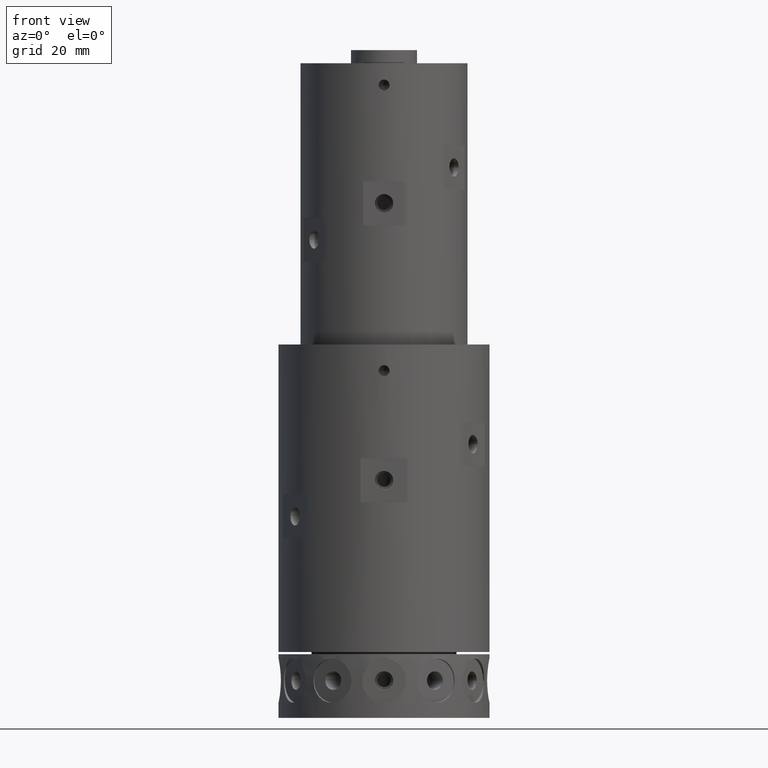
[diagram: clean part render]
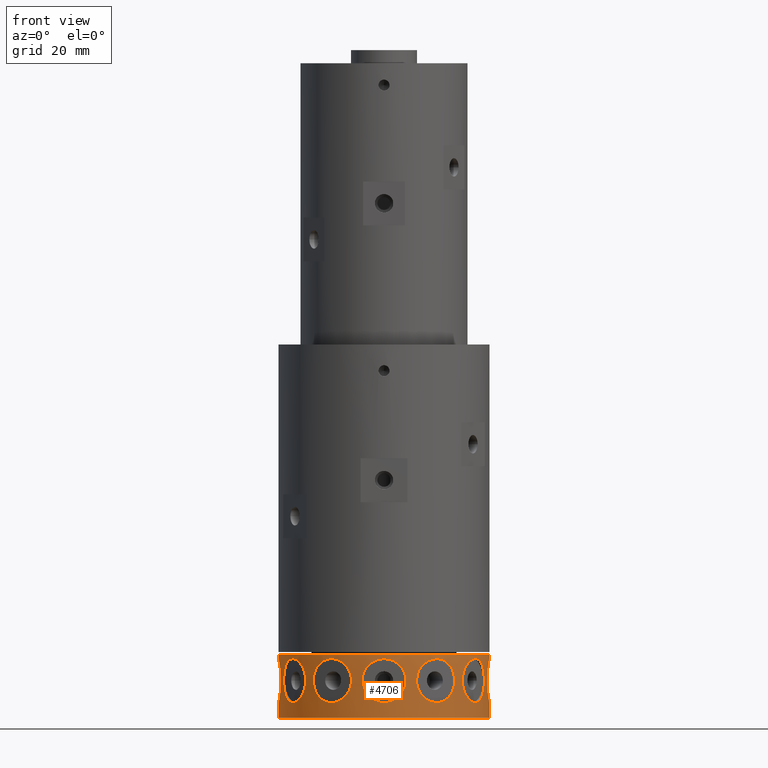
[diagram: same view with one face highlighted and labeled with its STEP entity id]
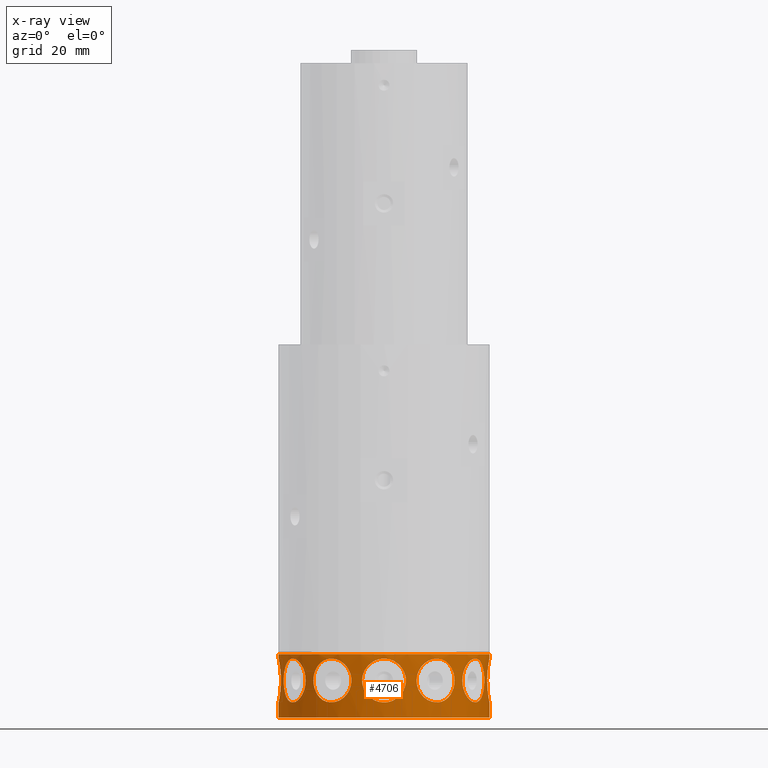
[diagram: x-ray of the same camera — body ghosted, the highlighted face saturated]
A machine part, front view. The second image highlights one B-rep face of the part: STEP entity #4706.
The next image is the same camera in x-ray: the body ghosted, the highlighted face saturated — about 0% of this face is hidden behind the body in this view.
In plain terms, the highlighted cylindrical surface (partial cylindrical patch) has radius 24 mm, axis along (-0, -0, -1).
Its self-contained STEP definition (entity closure, byte-faithful):
#122 = CARTESIAN_POINT ( 'NONE',  ( -24.00000000000000400, 0.0000000000000000000, 14.50000000000000000 ) ) ;
#129 = ORIENTED_EDGE ( 'NONE', *, *, #4991, .T. ) ;
#130 = CARTESIAN_POINT ( 'NONE',  ( 14.74826558274845200, -18.93522465387951200, 4.733794006811129900 ) ) ;
#143 = LINE ( 'NONE', #4062, #8245 ) ;
#167 = CARTESIAN_POINT ( 'NONE',  ( 10.02949048859174900, -21.80436556050815300, 4.015088774779651500 ) ) ;
#198 = CARTESIAN_POINT ( 'NONE',  ( -2.220531935744005200, -23.89898272555750600, 4.008164986273575500 ) ) ;
#199 = CARTESIAN_POINT ( 'NONE',  ( 7.406567575383176600, -22.82855135025617300, 8.500000000000000000 ) ) ;
#231 = CARTESIAN_POINT ( 'NONE',  ( -4.967374481659937200, -23.48040615454214100, 9.157522293402587700 ) ) ;
#248 = VERTEX_POINT ( 'NONE', #8449 ) ;
#264 = CARTESIAN_POINT ( 'NONE',  ( -1.613381397295896800, -23.94762794951140700, 13.24383854780268200 ) ) ;
#266 = CARTESIAN_POINT ( 'NONE',  ( 8.588673104109744800, -22.41180298968017900, 11.80290660976175600 ) ) ;
#278 = CARTESIAN_POINT ( 'NONE',  ( 23.89888902873934400, -2.221680365331011800, 12.99134818229517100 ) ) ;
#291 = CARTESIAN_POINT ( 'NONE',  ( 17.82855135025605300, -16.06682161322778100, 8.826735618121329500 ) ) ;
#302 = CARTESIAN_POINT ( 'NONE',  ( 13.86935004742341300, -19.58910102073858200, 12.99369059426969000 ) ) ;
#314 = CARTESIAN_POINT ( 'NONE',  ( 23.91122805209483100, -2.067921113125979400, 3.944713409578721300 ) ) ;
#325 = CARTESIAN_POINT ( 'NONE',  ( -23.57587511710381600, -4.493803645036831700, 10.71624755155956700 ) ) ;
#329 = CARTESIAN_POINT ( 'NONE',  ( 19.41708634927863400, -14.10854089445345300, 12.83667748681265100 ) ) ;
#338 = CARTESIAN_POINT ( 'NONE',  ( 16.06682161322759900, -17.82855135025622000, 8.831255621937335900 ) ) ;
#342 = CARTESIAN_POINT ( 'NONE',  ( 23.47338918861098000, -5.000000000000084400, 8.173260344134137200 ) ) ;
#364 = CARTESIAN_POINT ( 'NONE',  ( 22.13942176455652700, -9.266190208074107200, 12.46925792010806300 ) ) ;
#396 = CARTESIAN_POINT ( 'NONE',  ( -23.50723507393471200, -4.838821556857724600, 7.198888776357780900 ) ) ;
#435 = CARTESIAN_POINT ( 'NONE',  ( -23.96685257421812000, -1.301318733171609600, 3.661201027741984900 ) ) ;
#436 = CARTESIAN_POINT ( 'NONE',  ( 3.308224486025196100, -23.77203227546876000, 4.736865721211480600 ) ) ;
#450 = CARTESIAN_POINT ( 'NONE',  ( -22.77742839679917000, -7.562611730744778900, 9.800117705264922200 ) ) ;
#486 = CARTESIAN_POINT ( 'NONE',  ( -21.40601629611568100, -10.85748079803493100, 13.33900197521032800 ) ) ;
#502 = CIRCLE ( 'NONE', #10076, 24.00000000000000400 ) ;
#517 = CARTESIAN_POINT ( 'NONE',  ( -18.64685401246686800, -15.11121552062792600, 11.80807102446490700 ) ) ;
#530 = LINE ( 'NONE', #7307, #2117 ) ;
#545 = EDGE_CURVE ( 'NONE', #3594, #6454, #6890, .T. ) ;
#581 = CARTESIAN_POINT ( 'NONE',  ( -18.17169002656887100, -15.67820396616521200, 6.279559102107191900 ) ) ;
#586 = CARTESIAN_POINT ( 'NONE',  ( -8.391854962186199500, -22.48578905323903100, 5.449868091254789900 ) ) ;
#612 = CARTESIAN_POINT ( 'NONE',  ( 22.74655701015581100, -7.655752230193517200, 6.884650466121724000 ) ) ;
#617 = CARTESIAN_POINT ( 'NONE',  ( -21.10744773915596200, -11.42711094944248800, 3.532629673477421000 ) ) ;
#625 = CARTESIAN_POINT ( 'NONE',  ( -13.36965912046181000, -19.93350885921637400, 3.755511416428878800 ) ) ;
#644 = CARTESIAN_POINT ( 'NONE',  ( 20.62204530881398400, -12.28162298108319700, 3.499872291343175700 ) ) ;
#649 = CARTESIAN_POINT ( 'NONE',  ( -22.74676751154337500, -7.655120687706542500, 6.886671960070371400 ) ) ;
#655 = CARTESIAN_POINT ( 'NONE',  ( -16.04197545122927700, -17.85103169683782200, 7.841251547382280600 ) ) ;
#657 = CARTESIAN_POINT ( 'NONE',  ( -16.06682161322784800, -17.82855135025599600, 8.500000000000000000 ) ) ;
#673 = EDGE_CURVE ( 'NONE', #7771, #2516, #1932, .T. ) ;
#680 = CARTESIAN_POINT ( 'NONE',  ( 18.17077826973228800, -15.67925770053487800, 6.282406095307051100 ) ) ;
#690 = CARTESIAN_POINT ( 'NONE',  ( -14.10854089445351900, -19.41708634927857700, 12.83667748681264700 ) ) ;
#704 = CARTESIAN_POINT ( 'NONE',  ( 2.502065545323049400, -23.86966183603516400, 12.83203452939213000 ) ) ;
#726 = CARTESIAN_POINT ( 'NONE',  ( -9.266190208074190700, -22.13942176455649500, 12.46925792010807000 ) ) ;
#742 = CARTESIAN_POINT ( 'NONE',  ( 4.967946394105414500, -23.48028387647548200, 7.847109000474980600 ) ) ;
#887 = CARTESIAN_POINT ( 'NONE',  ( 16.06682161322759600, -17.82855135025622000, 8.500000000000000000 ) ) ;
#918 = CARTESIAN_POINT ( 'NONE',  ( 14.10645773953483200, -19.41863778143104800, 4.161587387331105800 ) ) ;
#931 = EDGE_CURVE ( 'NONE', #8141, #6433, #502, .T. ) ;
#935 = ORIENTED_EDGE ( 'NONE', *, *, #8157, .T. ) ;
#954 = CARTESIAN_POINT ( 'NONE',  ( 9.636679340909022800, -21.98073996825927900, 4.253626933688393800 ) ) ;
#989 = CARTESIAN_POINT ( 'NONE',  ( -3.050261640002679200, -23.80694397862808400, 4.524763182458553200 ) ) ;
#1020 = CARTESIAN_POINT ( 'NONE',  ( -4.744505481406615200, -23.52670997288932100, 10.11165554707453900 ) ) ;
#1038 = CARTESIAN_POINT ( 'NONE',  ( 23.50715725497613900, -4.839204844773667500, 9.800498510069298100 ) ) ;
#1055 = CARTESIAN_POINT ( 'NONE',  ( -0.6587409213344869200, -23.99311489356556100, 13.46724464833383400 ) ) ;
#1057 = CARTESIAN_POINT ( 'NONE',  ( 9.261341234257992400, -22.14275789075155000, 12.47472140808765700 ) ) ;
#1065 = CARTESIAN_POINT ( 'NONE',  ( 23.96699657741024600, -1.298296719651947900, 13.33950709366749800 ) ) ;
#1076 = CARTESIAN_POINT ( 'NONE',  ( -24.00000000000000400, -0.3314224757425351900, 13.49999999999998200 ) ) ;
#1093 = CARTESIAN_POINT ( 'NONE',  ( 14.43345633518967800, -19.17535180917485200, 12.56775940971354400 ) ) ;
#1099 = CARTESIAN_POINT ( 'NONE',  ( 23.86922758726803600, -2.506191058909041500, 4.170357845851788700 ) ) ;
#1106 = VERTEX_POINT ( 'NONE', #1554 ) ;
#1112 = CARTESIAN_POINT ( 'NONE',  ( -23.52812237097422000, -4.736013675205131600, 10.11153200667775900 ) ) ;
#1115 = CARTESIAN_POINT ( 'NONE',  ( 19.93097330541404600, -13.37344283966834300, 13.24296514003538800 ) ) ;
#1146 = FACE_BOUND ( 'NONE', #3935, .T. ) ;
#1149 = CARTESIAN_POINT ( 'NONE',  ( 22.28218257492434900, -8.917277581527756100, 12.15242719173072000 ) ) ;
#1183 = CARTESIAN_POINT ( 'NONE',  ( -23.56381113483856600, -4.555316945923787700, 6.432146709808634500 ) ) ;
#1187 = B_SPLINE_CURVE_WITH_KNOTS ( 'NONE', 3,
 ( #657, #5340, #1448, #6920, #2234, #7715, #3015, #8515, #3817, #9288, #4584, #10086, #5375, #690, #6172, #1484, #6953, #2268, #7749, #3057, #8544, #3848, #9322, #4620, #10117, #5412, #726, #6208, #1511, #6988, #2297, #7782, #3088, #8582, #3881, #9358, #4647, #10155 ),
 .UNSPECIFIED., .F., .F.,
 ( 4, 2, 2, 2, 2, 2, 2, 2, 2, 2, 2, 2, 2, 2, 2, 2, 2, 2, 4 ),
 ( 0.01567522879212246800, 0.01665467418908911000, 0.01763411958605575300, 0.01812384228453907400, 0.01861356498302239900, 0.01959301037998903400, 0.02057245577695567300, 0.02155190117392231200, 0.02253134657088895100, 0.02351079196785559000, 0.02449023736482222600, 0.02546968276178886500, 0.02644912815875550400, 0.02693885085723882900, 0.02742857355572215000, 0.02840801895268879600, 0.02938746434965543900, 0.03036690974662208100, 0.03134635514358872400 ),
 .UNSPECIFIED. ) ;
#1195 = B_SPLINE_CURVE_WITH_KNOTS ( 'NONE', 3,
 ( #3674, #6816, #3709, #9179, #4483, #9977, #5264, #586, #6071, #1374, #6854, #2157, #7644, #2943, #8446, #3741, #9216, #4515, #10012, #5298, #625, #6100, #1412, #6882, #2196, #7676, #2981, #8477, #3780, #9253, #4549, #10048, #5339, #655, #6138, #1446 ),
 .UNSPECIFIED., .F., .F.,
 ( 4, 2, 2, 2, 2, 2, 2, 2, 2, 2, 2, 2, 2, 2, 2, 2, 2, 4 ),
 ( 0.0000000000000000000, 0.0009797017995076555300, 0.001959403599015311100, 0.002939105398522966800, 0.003918807198030622100, 0.004898508997538277900, 0.005878210797045933600, 0.006857912596553587600, 0.007837614396061242500, 0.008817316195568898300, 0.009797017995076552300, 0.01028686889483038100, 0.01077671979458420800, 0.01175642159409186200, 0.01273612339359951400, 0.01371582519310716500, 0.01469552699261481700, 0.01567522879212246800 ),
 .UNSPECIFIED. ) ;
#1219 = CARTESIAN_POINT ( 'NONE',  ( -24.00000000000000700, -0.3267403682312185500, 3.500000000000016000 ) ) ;
#1222 = CARTESIAN_POINT ( 'NONE',  ( 2.509265310897021500, -23.87005316230332500, 4.162719691173014000 ) ) ;
#1224 = ORIENTED_EDGE ( 'NONE', *, *, #2237, .T. ) ;
#1235 = CARTESIAN_POINT ( 'NONE',  ( -22.68486585950483600, -7.835872840992288400, 10.56544131267758000 ) ) ;
#1269 = CARTESIAN_POINT ( 'NONE',  ( -20.95077142493037700, -11.71213505577727400, 13.49984549162926200 ) ) ;
#1304 = CARTESIAN_POINT ( 'NONE',  ( -18.27433398739989200, -15.55902724996639500, 11.00914911933392700 ) ) ;
#1324 = EDGE_CURVE ( 'NONE', #6221, #5562, #3439, .T. ) ;
#1354 = EDGE_CURVE ( 'NONE', #3968, #6453, #9310, .T. ) ;
#1370 = CARTESIAN_POINT ( 'NONE',  ( -18.51045410874728600, -15.27733706314992700, 5.449868091254790800 ) ) ;
#1374 = CARTESIAN_POINT ( 'NONE',  ( -9.024252785250888900, -22.23998498335960500, 4.733794006811126400 ) ) ;
#1401 = CARTESIAN_POINT ( 'NONE',  ( 22.61196464593521300, -8.045681692939981000, 5.992718452758360600 ) ) ;
#1407 = CARTESIAN_POINT ( 'NONE',  ( -21.54521886786643800, -10.57809549841261900, 3.755511416428878800 ) ) ;
#1412 = CARTESIAN_POINT ( 'NONE',  ( -13.86838924450675100, -19.58797633038889800, 4.015088774779649800 ) ) ;
#1432 = EDGE_LOOP ( 'NONE', ( #7937, #6302 ) ) ;
#1436 = CARTESIAN_POINT ( 'NONE',  ( 20.10620036936386200, -13.10892525797063800, 3.660755686510500900 ) ) ;
#1440 = CARTESIAN_POINT ( 'NONE',  ( -22.81827411606979100, -7.438459207608121700, 7.841251547382280600 ) ) ;
#1446 = CARTESIAN_POINT ( 'NONE',  ( -16.06682161322784800, -17.82855135025599600, 8.500000000000000000 ) ) ;
#1448 = CARTESIAN_POINT ( 'NONE',  ( -16.04276942521449800, -17.85031903722493500, 9.152122977905515100 ) ) ;
#1473 = CARTESIAN_POINT ( 'NONE',  ( 17.93851773562877500, -15.94408637921542600, 7.198390467570027900 ) ) ;
#1484 = CARTESIAN_POINT ( 'NONE',  ( -13.37344283966840500, -19.93097330541398500, 13.24296514003538600 ) ) ;
#1498 = CARTESIAN_POINT ( 'NONE',  ( 3.051983306332923800, -23.80672958026115500, 12.47397360973502800 ) ) ;
#1511 = CARTESIAN_POINT ( 'NONE',  ( -8.917277581527834200, -22.28218257492431300, 12.15242719173071800 ) ) ;
#1554 = CARTESIAN_POINT ( 'NONE',  ( 7.406567575383176600, -22.82855135025617300, 8.500000000000000000 ) ) ;
#1620 = ORIENTED_EDGE ( 'NONE', *, *, #931, .T. ) ;
#1688 = CARTESIAN_POINT ( 'NONE',  ( 13.37339751315748000, -19.93096157817138800, 3.757235267358978200 ) ) ;
#1692 = EDGE_CURVE ( 'NONE', #7597, #3850, #4083, .T. ) ;
#1694 = CARTESIAN_POINT ( 'NONE',  ( 4.591890918768938000E-016, -24.00000000000000400, 3.499999999999998700 ) ) ;
#1725 = CARTESIAN_POINT ( 'NONE',  ( 9.025145752288754200, -22.23964634506650000, 4.732683001744098800 ) ) ;
#1755 = CARTESIAN_POINT ( 'NONE',  ( -3.766336608095260300, -23.70377037705343400, 5.195388004836803300 ) ) ;
#1791 = CARTESIAN_POINT ( 'NONE',  ( -4.484959205541788000, -23.57734769300786900, 10.71629094236172700 ) ) ;
#1808 = CARTESIAN_POINT ( 'NONE',  ( 23.56365618667822300, -4.556111717475896100, 10.56601035222477400 ) ) ;
#1824 = DIRECTION ( 'NONE',  ( -0.0000000000000000000, -0.0000000000000000000, -1.000000000000000000 ) ) ;
#1828 = CARTESIAN_POINT ( 'NONE',  ( 6.123243449166904400E-016, -24.00000000000000400, 13.50000000000000400 ) ) ;
#1831 = CARTESIAN_POINT ( 'NONE',  ( 10.02408026784911300, -21.80849570857013100, 12.99061767483755000 ) ) ;
#1843 = CARTESIAN_POINT ( 'NONE',  ( 24.00000000000001100, -0.3301208691397151100, 13.50000000000000900 ) ) ;
#1855 = CARTESIAN_POINT ( 'NONE',  ( -23.96703810649334100, -1.297617888606650300, 13.33971276625569400 ) ) ;
#1858 = CARTESIAN_POINT ( 'NONE',  ( 18.00312358804034600, -15.87147472824939800, 10.11399832753784300 ) ) ;
#1861 = EDGE_CURVE ( 'NONE', #8889, #248, #1195, .T. ) ;
#1867 = CARTESIAN_POINT ( 'NONE',  ( 14.74238748710096800, -18.93880376954407300, 12.26174749346656200 ) ) ;
#1874 = CARTESIAN_POINT ( 'NONE',  ( 23.80681527554843400, -3.051156913121873400, 4.525561074209261600 ) ) ;
#1888 = CARTESIAN_POINT ( 'NONE',  ( -23.50035201791640200, -4.871809943637692300, 9.636920788837542800 ) ) ;
#1894 = CARTESIAN_POINT ( 'NONE',  ( 20.44827463149260200, -12.56863109269755300, 13.46688295243599500 ) ) ;
#1927 = ORIENTED_EDGE ( 'NONE', *, *, #6969, .T. ) ;
#1929 = CARTESIAN_POINT ( 'NONE',  ( 22.48422072976080300, -8.396096106145396500, 11.55622767201179900 ) ) ;
#1932 = B_SPLINE_CURVE_WITH_KNOTS ( 'NONE', 3,
 ( #9825, #9052, #3560, #450, #5919, #1235, #6697, #2017, #7496, #2795, #8303, #3591, #9084, #4373, #9862, #5145, #486, #5953, #1269, #6737, #2052, #7530, #2826, #8337, #3626, #9115, #4411, #9897, #5179, #517, #5991, #1304, #6771, #2086, #7563, #2863, #8368, #3663 ),
 .UNSPECIFIED., .F., .F.,
 ( 4, 2, 2, 2, 2, 2, 2, 2, 2, 2, 2, 2, 2, 2, 2, 2, 2, 2, 4 ),
 ( 0.01567522879212246100, 0.01665467418908910300, 0.01763411958605574600, 0.01812384228453907100, 0.01861356498302239200, 0.01959301037998903400, 0.02057245577695567700, 0.02155190117392231900, 0.02253134657088896500, 0.02351079196785560800, 0.02449023736482225400, 0.02546968276178889600, 0.02644912815875553900, 0.02693885085723885700, 0.02742857355572217400, 0.02840801895268880600, 0.02938746434965543900, 0.03036690974662207100, 0.03134635514358870300 ),
 .UNSPECIFIED. ) ;
#1966 = CARTESIAN_POINT ( 'NONE',  ( -23.60635172468009200, -4.329704870775009000, 5.993918384705670700 ) ) ;
#2002 = CARTESIAN_POINT ( 'NONE',  ( 1.620677869712631600, -23.94711633859688100, 3.758749317420682500 ) ) ;
#2017 = CARTESIAN_POINT ( 'NONE',  ( -22.60936607758103600, -8.051257250663642400, 11.00196923940504100 ) ) ;
#2052 = CARTESIAN_POINT ( 'NONE',  ( -20.45231924002669600, -12.56206694442521500, 13.46794471385350900 ) ) ;
#2086 = CARTESIAN_POINT ( 'NONE',  ( -18.00465944034906200, -15.86973522713167700, 10.12063278605491900 ) ) ;
#2105 = VERTEX_POINT ( 'NONE', #7906 ) ;
#2117 = VECTOR ( 'NONE', #1824, 1000.000000000000000 ) ;
#2145 = CARTESIAN_POINT ( 'NONE',  ( 23.47338918861099100, -5.000000000000083500, 8.500000000000000000 ) ) ;
#2149 = CARTESIAN_POINT ( 'NONE',  ( -24.00000000000000400, 0.0000000000000000000, 0.0000000000000000000 ) ) ;
#2151 = CARTESIAN_POINT ( 'NONE',  ( -18.93522465387956200, -14.74826558274839300, 4.733794006811129100 ) ) ;
#2157 = CARTESIAN_POINT ( 'NONE',  ( -9.763804755840206800, -21.92586965056426600, 4.161587387331103100 ) ) ;
#2185 = CARTESIAN_POINT ( 'NONE',  ( 22.41066129621219000, -8.591643070951315400, 5.193580530554830200 ) ) ;
#2189 = CARTESIAN_POINT ( 'NONE',  ( -21.80436556050818800, -10.02949048859167800, 4.015088774779650600 ) ) ;
#2196 = CARTESIAN_POINT ( 'NONE',  ( -14.21753953603802300, -19.33597910148150600, 4.253626933688393800 ) ) ;
#2218 = CARTESIAN_POINT ( 'NONE',  ( 19.67452369434458200, -13.74540859742354100, 3.944117705235204800 ) ) ;
#2225 = CARTESIAN_POINT ( 'NONE',  ( -22.82855135025619500, -7.406567575383098400, 8.500000000000000000 ) ) ;
#2234 = CARTESIAN_POINT ( 'NONE',  ( -15.87147472824945600, -18.00312358804029200, 10.11399832753784300 ) ) ;
#2237 = EDGE_CURVE ( 'NONE', #1106, #3262, #4688, .T. ) ;
#2257 = CARTESIAN_POINT ( 'NONE',  ( 17.82855135025604900, -16.06682161322778400, 8.173178847919366800 ) ) ;
#2268 = CARTESIAN_POINT ( 'NONE',  ( -12.56863109269763300, -20.44827463149255900, 13.46688295243599700 ) ) ;
#2281 = CARTESIAN_POINT ( 'NONE',  ( 3.764175413505734400, -23.70412032502662900, 11.80714168549151900 ) ) ;
#2297 = CARTESIAN_POINT ( 'NONE',  ( -8.396096106145474600, -22.48422072976076400, 11.55622767201179200 ) ) ;
#2443 = CARTESIAN_POINT ( 'NONE',  ( 16.04208778465347500, -17.85092901692820900, 7.843039874745480600 ) ) ;
#2472 = DIRECTION ( 'NONE',  ( -0.0000000000000000000, -0.0000000000000000000, -1.000000000000000000 ) ) ;
#2476 = CARTESIAN_POINT ( 'NONE',  ( 12.56314498585012800, -20.45169586839454500, 3.532050153819430900 ) ) ;
#2514 = CARTESIAN_POINT ( 'NONE',  ( 8.392715528009180300, -22.48546373137113000, 5.448806642675313200 ) ) ;
#2516 = VERTEX_POINT ( 'NONE', #8137 ) ;
#2545 = CARTESIAN_POINT ( 'NONE',  ( -4.338472335574827800, -23.60534025401670300, 5.992875468627838500 ) ) ;
#2562 = CARTESIAN_POINT ( 'NONE',  ( 23.48021848703757200, -4.968267861220635200, 9.152314620053504200 ) ) ;
#2583 = CARTESIAN_POINT ( 'NONE',  ( -4.246455061696939200, -23.62151656048026300, 11.14462855630844600 ) ) ;
#2585 = CARTESIAN_POINT ( 'NONE',  ( 7.562611730744854400, -22.77742839679914500, 9.800117705264924000 ) ) ;
#2595 = CARTESIAN_POINT ( 'NONE',  ( 23.60598503923003800, -4.331703501490491900, 11.00264119094144600 ) ) ;
#2620 = CARTESIAN_POINT ( 'NONE',  ( 10.85748079803500600, -21.40601629611564100, 13.33900197521032600 ) ) ;
#2637 = CARTESIAN_POINT ( 'NONE',  ( -23.89893532032386100, -2.221050424199427600, 12.99158441478216200 ) ) ;
#2640 = CARTESIAN_POINT ( 'NONE',  ( 18.17500414950431100, -15.67403591650652900, 10.71295534110636900 ) ) ;
#2647 = CARTESIAN_POINT ( 'NONE',  ( 15.11121552062799900, -18.64685401246681800, 11.80807102446490300 ) ) ;
#2655 = CARTESIAN_POINT ( 'NONE',  ( 23.70339253058022100, -3.768853408378436400, 5.197944211623769700 ) ) ;
#2669 = CARTESIAN_POINT ( 'NONE',  ( -23.47338918861106200, -4.999999999999755800, 8.827213834186006000 ) ) ;
#2671 = CARTESIAN_POINT ( 'NONE',  ( 20.94849451984996600, -11.71620707465781300, 13.50015342029473200 ) ) ;
#2674 = B_SPLINE_CURVE_WITH_KNOTS ( 'NONE', 3,
 ( #887, #5566, #2443, #7934, #3235, #8722, #4039, #9509, #4799, #130, #5602, #918, #6389, #1688, #7176, #2476, #7974, #3266, #8761, #4073, #9548, #4830, #167, #5633, #954, #6421, #1725, #7213, #2514, #8003, #3305, #8794, #4113, #9579, #4871, #199 ),
 .UNSPECIFIED., .F., .F.,
 ( 4, 2, 2, 2, 2, 2, 2, 2, 2, 2, 2, 2, 2, 2, 2, 2, 2, 4 ),
 ( 0.0000000000000000000, 0.0009797017995076538000, 0.001959403599015305000, 0.002939105398522956400, 0.003918807198030607400, 0.004898508997538261400, 0.005878210797045915400, 0.006857912596553568600, 0.007837614396061221700, 0.008817316195568875700, 0.009797017995076531500, 0.01028686889483035800, 0.01077671979458418700, 0.01175642159409184500, 0.01273612339359950200, 0.01371582519310716000, 0.01469552699261481700, 0.01567522879212247800 ),
 .UNSPECIFIED. ) ;
#2682 = CARTESIAN_POINT ( 'NONE',  ( 24.00000000000000400, 2.939152317953647900E-015, 14.50000000000000000 ) ) ;
#2704 = CARTESIAN_POINT ( 'NONE',  ( 22.66327589415554300, -7.898872292144185200, 10.72189796667532800 ) ) ;
#2706 = EDGE_CURVE ( 'NONE', #2516, #7771, #8360, .T. ) ;
#2708 = CARTESIAN_POINT ( 'NONE',  ( -23.47338918861106900, -4.999999999999755800, 8.172951281605090700 ) ) ;
#2742 = CARTESIAN_POINT ( 'NONE',  ( -23.66931999726111300, -3.974543851844107000, 5.448982144068870600 ) ) ;
#2744 = CARTESIAN_POINT ( 'NONE',  ( 4.744042316113997500, -23.52680020791379100, 6.887275646489400500 ) ) ;
#2781 = CARTESIAN_POINT ( 'NONE',  ( 0.6581273083604135500, -23.99314684827780300, 3.532597778237399000 ) ) ;
#2790 = CARTESIAN_POINT ( 'NONE',  ( 0.0000000000000000000, 0.0000000000000000000, 14.50000000000000000 ) ) ;
#2795 = CARTESIAN_POINT ( 'NONE',  ( -22.48534695484040600, -8.393049797970830300, 11.55184250434859700 ) ) ;
#2826 = CARTESIAN_POINT ( 'NONE',  ( -19.93289332937561700, -13.37054647568295700, 13.24402283387076700 ) ) ;
#2863 = CARTESIAN_POINT ( 'NONE',  ( -17.85092336067265600, -16.04209709926436000, 9.158125142015707700 ) ) ;
#2884 = B_SPLINE_CURVE_WITH_KNOTS ( 'NONE', 3,
 ( #6528, #9620, #4222, #9687, #4973, #314, #5781, #1099, #6560, #1874, #7354, #2655, #8161, #3455, #8947, #4251, #9724, #5006, #342, #5815 ),
 .UNSPECIFIED., .F., .F.,
 ( 4, 2, 2, 2, 2, 2, 2, 2, 2, 4 ),
 ( 0.007839568785800233800, 0.008819026286590512400, 0.009798483787380789200, 0.01028821253777592900, 0.01077794128817106800, 0.01175739878896135000, 0.01273685628975163000, 0.01371631379054190900, 0.01469577129133219100, 0.01567522879212246800 ),
 .UNSPECIFIED. ) ;
#2902 = CARTESIAN_POINT ( 'NONE',  ( -17.82855135025627300, -16.06682161322753200, 8.168657660841420300 ) ) ;
#2937 = CARTESIAN_POINT ( 'NONE',  ( -19.41863778143108400, -14.10645773953476100, 4.161587387331102200 ) ) ;
#2943 = CARTESIAN_POINT ( 'NONE',  ( -10.57402029196931900, -21.54718277038768500, 3.757235267358981300 ) ) ;
#2952 = VERTEX_POINT ( 'NONE', #1694 ) ;
#2968 = CARTESIAN_POINT ( 'NONE',  ( 22.14386303601954300, -9.258778163759535200, 4.527142494331025400 ) ) ;
#2975 = CARTESIAN_POINT ( 'NONE',  ( -21.98073996825931100, -9.636679340908948200, 4.253626933688393800 ) ) ;
#2981 = CARTESIAN_POINT ( 'NONE',  ( -14.74752582986500300, -18.93582866687249600, 4.732683001744100600 ) ) ;
#2992 = CARTESIAN_POINT ( 'NONE',  ( 0.0000000000000000000, 0.0000000000000000000, 14.50000000000000000 ) ) ;
#3004 = CARTESIAN_POINT ( 'NONE',  ( 19.41892768689952900, -14.10412295919152800, 4.169704446881406000 ) ) ;
#3015 = CARTESIAN_POINT ( 'NONE',  ( -15.67403591650660200, -18.17500414950426100, 10.71295534110636500 ) ) ;
#3037 = CARTESIAN_POINT ( 'NONE',  ( 6.123243449166904400E-016, -24.00000000000000400, 13.50000000000000400 ) ) ;
#3057 = CARTESIAN_POINT ( 'NONE',  ( -11.71620707465788800, -20.94849451984992700, 13.50015342029473700 ) ) ;
#3070 = CARTESIAN_POINT ( 'NONE',  ( 4.336741192999690900, -23.60564411827059300, 11.00969904010642800 ) ) ;
#3088 = CARTESIAN_POINT ( 'NONE',  ( -7.898872292144268700, -22.66327589415551800, 10.72189796667533200 ) ) ;
#3094 = VECTOR ( 'NONE', #2472, 1000.000000000000000 ) ;
#3212 = FACE_BOUND ( 'NONE', #9392, .T. ) ;
#3235 = CARTESIAN_POINT ( 'NONE',  ( 15.87122010432915100, -18.00335442150488100, 6.884650466121724900 ) ) ;
#3245 = CARTESIAN_POINT ( 'NONE',  ( 24.00000000000000400, 2.939152317953647900E-015, 0.0000000000000000000 ) ) ;
#3262 = VERTEX_POINT ( 'NONE', #4839 ) ;
#3266 = CARTESIAN_POINT ( 'NONE',  ( 11.71840362488499900, -20.94722015572782300, 3.499872291343177900 ) ) ;
#3282 = CARTESIAN_POINT ( 'NONE',  ( 24.00000000000000400, 2.938953179105697200E-015, 13.50000000000000400 ) ) ;
#3305 = CARTESIAN_POINT ( 'NONE',  ( 7.896726737854936400, -22.66402461601214200, 6.282406095307052000 ) ) ;
#3336 = CARTESIAN_POINT ( 'NONE',  ( -4.742775851320019800, -23.52705358787510500, 6.883817144636307000 ) ) ;
#3372 = CARTESIAN_POINT ( 'NONE',  ( -3.767435712883291800, -23.70361949192441400, 11.80368126821196900 ) ) ;
#3376 = CARTESIAN_POINT ( 'NONE',  ( 7.835872840992364800, -22.68486585950480700, 10.56544131267757600 ) ) ;
#3388 = CARTESIAN_POINT ( 'NONE',  ( 23.66950455425328000, -3.973500076536328000, 11.55260599287145200 ) ) ;
#3409 = CARTESIAN_POINT ( 'NONE',  ( 11.71213505577733600, -20.95077142493033100, 13.49984549162926100 ) ) ;
#3429 = EDGE_CURVE ( 'NONE', #6453, #6454, #10083, .T. ) ;
#3433 = CARTESIAN_POINT ( 'NONE',  ( -23.80685975659611500, -3.050923035087401900, 12.47473632980977200 ) ) ;
#3436 = CARTESIAN_POINT ( 'NONE',  ( 18.33329134343094000, -15.48867188188105000, 11.14391424246052300 ) ) ;
#3439 = B_SPLINE_CURVE_WITH_KNOTS ( 'NONE', 3,
 ( #5729, #291, #4955, #6543, #1858, #7337, #2640, #8144, #3436, #8929, #4241, #9707, #4989, #329, #5799, #1115, #6576, #1894, #7374, #2671, #8180, #3471, #8967, #4265, #9741, #5023, #364, #5828, #1149, #6609, #1929, #7407, #2704, #8212, #3504, #9001, #4296, #9772 ),
 .UNSPECIFIED., .F., .F.,
 ( 4, 2, 2, 2, 2, 2, 2, 2, 2, 2, 2, 2, 2, 2, 2, 2, 2, 2, 4 ),
 ( 0.01567522879212247100, 0.01665467418908910300, 0.01763411958605573900, 0.01812384228453905700, 0.01861356498302237400, 0.01959301037998901300, 0.02057245577695565600, 0.02155190117392229500, 0.02253134657088893800, 0.02351079196785557700, 0.02449023736482221900, 0.02546968276178885800, 0.02644912815875550100, 0.02693885085723882200, 0.02742857355572214000, 0.02840801895268878900, 0.02938746434965543500, 0.03036690974662208100, 0.03134635514358873100 ),
 .UNSPECIFIED. ) ;
#3449 = CARTESIAN_POINT ( 'NONE',  ( 15.55902724996645300, -18.27433398739983200, 11.00914911933392700 ) ) ;
#3455 = CARTESIAN_POINT ( 'NONE',  ( 23.60566175474112800, -4.336641031264844200, 5.990150527889842800 ) ) ;
#3471 = CARTESIAN_POINT ( 'NONE',  ( 21.40319329910974800, -10.86306608711968700, 13.34072041533560300 ) ) ;
#3504 = CARTESIAN_POINT ( 'NONE',  ( 22.77712633030154500, -7.563521686642956400, 9.803254081090857500 ) ) ;
#3539 = CARTESIAN_POINT ( 'NONE',  ( -23.77289679700839600, -3.302198823446369100, 4.731272916052977200 ) ) ;
#3542 = CARTESIAN_POINT ( 'NONE',  ( 4.340404371398382600, -23.60497675981082500, 5.996400173398312100 ) ) ;
#3560 = CARTESIAN_POINT ( 'NONE',  ( -22.81860538790451200, -7.437445039286503200, 9.152122977905513300 ) ) ;
#3577 = CARTESIAN_POINT ( 'NONE',  ( 4.591890918768938000E-016, -24.00000000000000400, 3.499999999999998700 ) ) ;
#3587 = DIRECTION ( 'NONE',  ( -0.0000000000000000000, -0.0000000000000000000, -1.000000000000000000 ) ) ;
#3591 = CARTESIAN_POINT ( 'NONE',  ( -22.24094406211468600, -9.021897037950559200, 12.26405422221419400 ) ) ;
#3594 = VERTEX_POINT ( 'NONE', #2145 ) ;
#3603 = ORIENTED_EDGE ( 'NONE', *, *, #2706, .T. ) ;
#3626 = CARTESIAN_POINT ( 'NONE',  ( -19.42070570702467300, -14.10359191776863800, 12.84033848883341600 ) ) ;
#3663 = CARTESIAN_POINT ( 'NONE',  ( -17.82855135025627300, -16.06682161322753500, 8.500000000000000000 ) ) ;
#3665 = ORIENTED_EDGE ( 'NONE', *, *, #3429, .F. ) ;
#3674 = CARTESIAN_POINT ( 'NONE',  ( -7.406567575383498100, -22.82855135025606700, 8.500000000000000000 ) ) ;
#3680 = EDGE_CURVE ( 'NONE', #4690, #2952, #8059, .T. ) ;
#3690 = DIRECTION ( 'NONE',  ( 0.0000000000000000000, 0.0000000000000000000, 1.000000000000000000 ) ) ;
#3709 = CARTESIAN_POINT ( 'NONE',  ( -7.438314117485921500, -22.81832005971402200, 7.843039874745480600 ) ) ;
#3737 = CARTESIAN_POINT ( 'NONE',  ( -19.93096157817143400, -13.37339751315742500, 3.757235267358981300 ) ) ;
#3741 = CARTESIAN_POINT ( 'NONE',  ( -11.43011567957791100, -21.10585064337055200, 3.532050153819429500 ) ) ;
#3742 = AXIS2_PLACEMENT_3D ( 'NONE', #2790, #3587, #7492 ) ;
#3759 = B_SPLINE_CURVE_WITH_KNOTS ( 'NONE', 3,
 ( #7211, #8791, #4109, #9578, #4869, #198, #5664, #989, #6449, #1755, #7244, #2545, #8042, #3336, #8827, #4141, #9611, #4896, #231, #5697, #1020, #6486, #1791, #7274, #2583, #8078, #3372, #8864, #4178, #9638, #4933, #264, #5735, #1055, #6521, #1828 ),
 .UNSPECIFIED., .F., .F.,
 ( 4, 2, 2, 2, 2, 2, 2, 2, 2, 2, 2, 2, 2, 2, 2, 2, 2, 4 ),
 ( 7.026510343662367900E-019, 0.0009797055850374637700, 0.001959411170074927100, 0.002939116755112390000, 0.003918822340149853400, 0.004898527925187316300, 0.005878233510224779200, 0.006857939095262242900, 0.007837644680299705000, 0.008817350265337167000, 0.009797055850374630800, 0.01028690864289336600, 0.01077676143541210000, 0.01175646702044957000, 0.01273617260548704100, 0.01371587819052451200, 0.01469558377556198100, 0.01567528936059945200 ),
 .UNSPECIFIED. ) ;
#3767 = CARTESIAN_POINT ( 'NONE',  ( 21.80613541821973600, -10.02913000203576600, 4.006860893105217000 ) ) ;
#3773 = CARTESIAN_POINT ( 'NONE',  ( -22.23964634506653900, -9.025145752288677800, 4.732683001744098800 ) ) ;
#3780 = CARTESIAN_POINT ( 'NONE',  ( -15.27662504323649800, -18.51103671967761200, 5.448806642675314100 ) ) ;
#3790 = DIRECTION ( 'NONE',  ( 1.000000000000000000, 0.0000000000000000000, 0.0000000000000000000 ) ) ;
#3800 = ORIENTED_EDGE ( 'NONE', *, *, #5167, .T. ) ;
#3803 = CARTESIAN_POINT ( 'NONE',  ( 19.09227834684865100, -14.54506722615570700, 4.524864800210799000 ) ) ;
#3817 = CARTESIAN_POINT ( 'NONE',  ( -15.48867188188112100, -18.33329134343088300, 11.14391424246052300 ) ) ;
#3836 = CARTESIAN_POINT ( 'NONE',  ( 0.6521347011863595200, -23.99332989555732700, 13.46828597681800800 ) ) ;
#3848 = CARTESIAN_POINT ( 'NONE',  ( -10.86306608711977300, -21.40319329910973100, 13.34072041533560700 ) ) ;
#3850 = VERTEX_POINT ( 'NONE', #5271 ) ;
#3866 = CARTESIAN_POINT ( 'NONE',  ( 4.742976100012980600, -23.52702074503472200, 10.11621628810783800 ) ) ;
#3881 = CARTESIAN_POINT ( 'NONE',  ( -7.563521686643043500, -22.77712633030152700, 9.803254081090859300 ) ) ;
#3935 = EDGE_LOOP ( 'NONE', ( #1927, #1224 ) ) ;
#3968 = VERTEX_POINT ( 'NONE', #122 ) ;
#3969 = FACE_OUTER_BOUND ( 'NONE', #5182, .T. ) ;
#4039 = CARTESIAN_POINT ( 'NONE',  ( 15.55969496638548200, -18.27374705981704000, 5.992718452758359700 ) ) ;
#4062 = CARTESIAN_POINT ( 'NONE',  ( 24.00000000000000400, 2.939152317953647900E-015, 14.50000000000000000 ) ) ;
#4073 = CARTESIAN_POINT ( 'NONE',  ( 10.85801766446381900, -21.40576247439599200, 3.660755686510500900 ) ) ;
#4083 = B_SPLINE_CURVE_WITH_KNOTS ( 'NONE', 3,
 ( #6539, #1076, #5760, #1855, #7333, #2637, #8139, #3433, #8923, #4237, #9704, #4987, #325, #5794, #1112, #6571, #1888, #7370, #2669, #8177 ),
 .UNSPECIFIED., .F., .F.,
 ( 4, 2, 2, 2, 2, 2, 2, 2, 2, 4 ),
 ( 3.281959011196588900E-019, 0.0009799528326631368700, 0.001959905665326273300, 0.002939858497989409700, 0.003919811330652545700, 0.004899764163315682200, 0.005879716995978818600, 0.006369693412310386400, 0.006859669828641955100, 0.007839622661305091500 ),
 .UNSPECIFIED. ) ;
#4109 = CARTESIAN_POINT ( 'NONE',  ( -0.6569617715993590900, -23.99314649813739600, 3.532608428417531400 ) ) ;
#4113 = CARTESIAN_POINT ( 'NONE',  ( 7.563168875684477900, -22.77724271234840400, 7.198390467570029600 ) ) ;
#4141 = CARTESIAN_POINT ( 'NONE',  ( -4.967948703364216500, -23.48028550461390700, 7.845840228978528500 ) ) ;
#4154 = ORIENTED_EDGE ( 'NONE', *, *, #1354, .F. ) ;
#4178 = CARTESIAN_POINT ( 'NONE',  ( -3.051347216057886500, -23.80679296868278200, 12.47431069242526800 ) ) ;
#4180 = CARTESIAN_POINT ( 'NONE',  ( 8.051257250663718800, -22.60936607758101500, 11.00196923940504400 ) ) ;
#4192 = CARTESIAN_POINT ( 'NONE',  ( 23.77230294927368700, -3.306340854903608000, 12.26488803201976000 ) ) ;
#4214 = CARTESIAN_POINT ( 'NONE',  ( 12.56206694442528800, -20.45231924002664700, 13.46794471385351100 ) ) ;
#4222 = CARTESIAN_POINT ( 'NONE',  ( 23.99309076596116000, -0.6593476120529479000, 3.532873231787054400 ) ) ;
#4237 = CARTESIAN_POINT ( 'NONE',  ( -23.70365819168318200, -3.767043311037644700, 11.80381416036066400 ) ) ;
#4241 = CARTESIAN_POINT ( 'NONE',  ( 18.64391058779930100, -15.11485418162016700, 11.80290660976175600 ) ) ;
#4248 = CARTESIAN_POINT ( 'NONE',  ( 15.86973522713173600, -18.00465944034900900, 10.12063278605493000 ) ) ;
#4251 = CARTESIAN_POINT ( 'NONE',  ( 23.52681320391656100, -4.743980331235818900, 6.887058316545516600 ) ) ;
#4265 = CARTESIAN_POINT ( 'NONE',  ( 21.80575998541688400, -10.02998409754755300, 12.99369059426969600 ) ) ;
#4296 = CARTESIAN_POINT ( 'NONE',  ( 22.82855135025609900, -7.406567575383413700, 8.831255621937334200 ) ) ;
#4327 = CARTESIAN_POINT ( 'NONE',  ( -23.86994195730890700, -2.509972151526966400, 4.163428389656719900 ) ) ;
#4330 = CARTESIAN_POINT ( 'NONE',  ( 3.969359711631086800, -23.66971129445972400, 5.455178568925427700 ) ) ;
#4373 = CARTESIAN_POINT ( 'NONE',  ( -21.92689799956766400, -9.761419598724504700, 12.83667748681264200 ) ) ;
#4411 = CARTESIAN_POINT ( 'NONE',  ( -19.09446699876912500, -14.54020656916691200, 12.46925792010806500 ) ) ;
#4477 = CARTESIAN_POINT ( 'NONE',  ( -17.85092901692825900, -16.04208778465341100, 7.843039874745480600 ) ) ;
#4483 = CARTESIAN_POINT ( 'NONE',  ( -7.655752230193600700, -22.74655701015577900, 6.884650466121726700 ) ) ;
#4486 = B_SPLINE_CURVE_WITH_KNOTS ( 'NONE', 3,
 ( #9746, #2708, #5064, #396, #5872, #1183, #6646, #1966, #7449, #2742, #8251, #3539, #9036, #4327, #9810, #5095, #435, #5901, #1219, #6678 ),
 .UNSPECIFIED., .F., .F.,
 ( 4, 2, 2, 2, 2, 2, 2, 2, 2, 4 ),
 ( 0.007839622661305091500, 0.008819080998716822800, 0.009798539336128554000, 0.01028826850483442100, 0.01077799767354028700, 0.01175745601095201700, 0.01273691434836375000, 0.01371637268577547900, 0.01469583102318720900, 0.01567528936059893800 ),
 .UNSPECIFIED. ) ;
#4505 = CARTESIAN_POINT ( 'NONE',  ( 22.82855135025609900, -7.406567575383411900, 8.168657660841418500 ) ) ;
#4508 = CARTESIAN_POINT ( 'NONE',  ( -20.45169586839458400, -12.56314498585005300, 3.532050153819430000 ) ) ;
#4515 = CARTESIAN_POINT ( 'NONE',  ( -12.28162298108327000, -20.62204530881393400, 3.499872291343176100 ) ) ;
#4540 = CARTESIAN_POINT ( 'NONE',  ( 21.40601680353303100, -10.85757433479775500, 3.660758963730903500 ) ) ;
#4547 = CARTESIAN_POINT ( 'NONE',  ( -22.48546373137117600, -8.392715528009109200, 5.448806642675314100 ) ) ;
#4549 = CARTESIAN_POINT ( 'NONE',  ( -15.67925770053494500, -18.17077826973222800, 6.282406095307052000 ) ) ;
#4573 = CARTESIAN_POINT ( 'NONE',  ( 18.64368699219962300, -15.11515996410795300, 5.197268214635200500 ) ) ;
#4584 = CARTESIAN_POINT ( 'NONE',  ( -15.11485418162023800, -18.64391058779924700, 11.80290660976175900 ) ) ;
#4601 = CARTESIAN_POINT ( 'NONE',  ( 1.614044517619335900, -23.94756832619517800, 13.24352414411165100 ) ) ;
#4614 = EDGE_CURVE ( 'NONE', #10063, #3594, #2884, .T. ) ;
#4620 = CARTESIAN_POINT ( 'NONE',  ( -10.02998409754762800, -21.80575998541684200, 12.99369059426969000 ) ) ;
#4632 = CARTESIAN_POINT ( 'NONE',  ( 4.966879704453733200, -23.48051047053666100, 9.160632066613535700 ) ) ;
#4647 = CARTESIAN_POINT ( 'NONE',  ( -7.406567575383496300, -22.82855135025606700, 8.831255621937330600 ) ) ;
#4688 = B_SPLINE_CURVE_WITH_KNOTS ( 'NONE', 3,
 ( #8045, #9614, #7276, #2585, #8081, #3376, #8867, #4180, #9642, #4936, #266, #5739, #1057, #6524, #1831, #7311, #2620, #8120, #3409, #8902, #4214, #9680, #4964, #302, #5773, #1093, #6552, #1867, #7346, #2647, #8153, #3449, #8939, #4248, #9716, #4998, #338, #5807 ),
 .UNSPECIFIED., .F., .F.,
 ( 4, 2, 2, 2, 2, 2, 2, 2, 2, 2, 2, 2, 2, 2, 2, 2, 2, 2, 4 ),
 ( 0.01567522879212247800, 0.01665467418908911400, 0.01763411958605574600, 0.01812384228453906400, 0.01861356498302238100, 0.01959301037998902400, 0.02057245577695566600, 0.02155190117392230900, 0.02253134657088894800, 0.02351079196785559000, 0.02449023736482223300, 0.02546968276178887500, 0.02644912815875551800, 0.02693885085723884300, 0.02742857355572216700, 0.02840801895268881000, 0.02938746434965545200, 0.03036690974662209500, 0.03134635514358873700 ),
 .UNSPECIFIED. ) ;
#4690 = VERTEX_POINT ( 'NONE', #9822 ) ;
#4706 = ADVANCED_FACE ( 'NONE', ( #3969, #3212, #5293, #7387, #1146, #9226 ), #8998, .T. ) ;
#4799 = CARTESIAN_POINT ( 'NONE',  ( 15.11238046265277600, -18.64591180779850200, 5.193580530554831900 ) ) ;
#4830 = CARTESIAN_POINT ( 'NONE',  ( 10.16593302794947300, -21.74113487793811900, 3.944117705235205700 ) ) ;
#4839 = CARTESIAN_POINT ( 'NONE',  ( 16.06682161322759600, -17.82855135025622000, 8.500000000000000000 ) ) ;
#4869 = CARTESIAN_POINT ( 'NONE',  ( -1.615390740934913300, -23.94749778470094300, 3.756809446975650800 ) ) ;
#4871 = CARTESIAN_POINT ( 'NONE',  ( 7.406567575383177400, -22.82855135025617000, 8.173178847919366800 ) ) ;
#4896 = CARTESIAN_POINT ( 'NONE',  ( -5.000129237316241600, -23.47336166013939300, 8.825141486632189100 ) ) ;
#4914 = LINE ( 'NONE', #9542, #3094 ) ;
#4933 = CARTESIAN_POINT ( 'NONE',  ( -2.217694608135405400, -23.89924087845486200, 12.99319867419706400 ) ) ;
#4936 = CARTESIAN_POINT ( 'NONE',  ( 8.393049797970906700, -22.48534695484037400, 11.55184250434859400 ) ) ;
#4943 = CARTESIAN_POINT ( 'NONE',  ( 23.87010098075971200, -2.508488954782762900, 12.83744955144661800 ) ) ;
#4955 = CARTESIAN_POINT ( 'NONE',  ( 17.85031903722499500, -16.04276942521443100, 9.152122977905515100 ) ) ;
#4964 = CARTESIAN_POINT ( 'NONE',  ( 13.37054647568302100, -19.93289332937557400, 13.24402283387077400 ) ) ;
#4973 = CARTESIAN_POINT ( 'NONE',  ( 23.94765478462126800, -1.613173603243255100, 3.756013751101877900 ) ) ;
#4987 = CARTESIAN_POINT ( 'NONE',  ( -23.60521571992293500, -4.339149261991064300, 11.00596532867528200 ) ) ;
#4989 = CARTESIAN_POINT ( 'NONE',  ( 19.09193572735955200, -14.54552022611015600, 12.47472140808766200 ) ) ;
#4991 = EDGE_CURVE ( 'NONE', #3968, #7597, #4914, .T. ) ;
#4998 = CARTESIAN_POINT ( 'NONE',  ( 16.04209709926440700, -17.85092336067260300, 9.158125142015707700 ) ) ;
#5006 = CARTESIAN_POINT ( 'NONE',  ( 23.48043105138558300, -4.967259047917702100, 7.841416741418390400 ) ) ;
#5023 = CARTESIAN_POINT ( 'NONE',  ( 22.08741575527514200, -9.389613625654449800, 12.56775940971352900 ) ) ;
#5037 = DIRECTION ( 'NONE',  ( -0.0000000000000000000, -0.0000000000000000000, -1.000000000000000000 ) ) ;
#5064 = CARTESIAN_POINT ( 'NONE',  ( -23.48045856545254000, -4.967127986714610100, 7.840663940774381200 ) ) ;
#5095 = CARTESIAN_POINT ( 'NONE',  ( -23.94765344173194800, -1.612990347761395600, 3.756034362986098200 ) ) ;
#5096 = CARTESIAN_POINT ( 'NONE',  ( 3.652562751682837800, -23.72071357029518200, 5.081642564395646200 ) ) ;
#5107 = EDGE_CURVE ( 'NONE', #2105, #8141, #530, .T. ) ;
#5145 = CARTESIAN_POINT ( 'NONE',  ( -21.54722788791896100, -10.57400778480379000, 13.24296514003538600 ) ) ;
#5167 = EDGE_CURVE ( 'NONE', #3850, #2105, #4486, .T. ) ;
#5179 = CARTESIAN_POINT ( 'NONE',  ( -18.86368020566274200, -14.83829737088347600, 12.15242719173072300 ) ) ;
#5182 = EDGE_LOOP ( 'NONE', ( #3665, #4154, #129, #8670, #3800, #9510, #1620, #5892, #10141, #8727 ) ) ;
#5258 = CARTESIAN_POINT ( 'NONE',  ( -18.00335442150493000, -15.87122010432909600, 6.884650466121724000 ) ) ;
#5264 = CARTESIAN_POINT ( 'NONE',  ( -8.045681692940057400, -22.61196464593518800, 5.992718452758360600 ) ) ;
#5271 = CARTESIAN_POINT ( 'NONE',  ( -23.47338918861106200, -4.999999999999755800, 8.500000000000000000 ) ) ;
#5288 = CARTESIAN_POINT ( 'NONE',  ( 22.77758699072721200, -7.562127884252694400, 7.202726130172947300 ) ) ;
#5293 = FACE_BOUND ( 'NONE', #1432, .T. ) ;
#5294 = CARTESIAN_POINT ( 'NONE',  ( -20.94722015572786900, -11.71840362488492800, 3.499872291343176100 ) ) ;
#5298 = CARTESIAN_POINT ( 'NONE',  ( -13.10892525797071300, -20.10620036936380800, 3.660755686510501300 ) ) ;
#5325 = CARTESIAN_POINT ( 'NONE',  ( 20.94913173278410300, -11.71498593301358700, 3.500128475251649700 ) ) ;
#5329 = CARTESIAN_POINT ( 'NONE',  ( -22.66402461601218100, -7.896726737854863600, 6.282406095307053700 ) ) ;
#5339 = CARTESIAN_POINT ( 'NONE',  ( -15.94408637921549100, -17.93851773562871800, 7.198390467570028800 ) ) ;
#5340 = CARTESIAN_POINT ( 'NONE',  ( -16.06682161322784100, -17.82855135025599600, 8.826735618121327700 ) ) ;
#5363 = CARTESIAN_POINT ( 'NONE',  ( 18.27499557476268800, -15.55822258136505800, 5.989582625739027200 ) ) ;
#5375 = CARTESIAN_POINT ( 'NONE',  ( -14.54552022611022500, -19.09193572735949100, 12.47472140808766400 ) ) ;
#5394 = CARTESIAN_POINT ( 'NONE',  ( 2.213034944253573900, -23.89819165743045200, 12.98657235453202000 ) ) ;
#5412 = CARTESIAN_POINT ( 'NONE',  ( -9.389613625654536800, -22.08741575527511700, 12.56775940971354400 ) ) ;
#5425 = CARTESIAN_POINT ( 'NONE',  ( 5.000155327032626200, -23.47335610284455500, 8.172303169139748700 ) ) ;
#5519 = CARTESIAN_POINT ( 'NONE',  ( -7.406567575383498100, -22.82855135025606700, 8.500000000000000000 ) ) ;
#5562 = VERTEX_POINT ( 'NONE', #8811 ) ;
#5566 = CARTESIAN_POINT ( 'NONE',  ( 16.06682161322759900, -17.82855135025622000, 8.168657660841420300 ) ) ;
#5570 = B_SPLINE_CURVE_WITH_KNOTS ( 'NONE', 3,
 ( #8435, #4505, #10003, #5288, #612, #6089, #1401, #6873, #2185, #7667, #2968, #8468, #3767, #9240, #4540, #10040, #5325, #644, #6128, #1436, #6906, #2218, #7703, #3004, #8502, #3803, #9276, #4573, #10070, #5363, #680, #6158, #1473, #6942, #2257, #7735 ),
 .UNSPECIFIED., .F., .F.,
 ( 4, 2, 2, 2, 2, 2, 2, 2, 2, 2, 2, 2, 2, 2, 2, 2, 2, 4 ),
 ( 1.734723475976807100E-018, 0.0009797017995076516300, 0.001959403599015304100, 0.002939105398522956400, 0.003918807198030609100, 0.004898508997538261400, 0.005878210797045913700, 0.006857912596553566000, 0.007837614396061218200, 0.008817316195568870500, 0.009797017995076524500, 0.01028686889483035200, 0.01077671979458417900, 0.01175642159409183600, 0.01273612339359949500, 0.01371582519310715300, 0.01469552699261481400, 0.01567522879212247100 ),
 .UNSPECIFIED. ) ;
#5579 = CARTESIAN_POINT ( 'NONE',  ( 24.00000000000000400, 2.939152340392296600E-015, 3.499999999999998700 ) ) ;
#5602 = CARTESIAN_POINT ( 'NONE',  ( 14.54775884523634100, -19.09026861583019000, 4.527142494331027200 ) ) ;
#5633 = CARTESIAN_POINT ( 'NONE',  ( 9.765223211512180900, -21.92399262420898200, 4.169704446881406000 ) ) ;
#5664 = CARTESIAN_POINT ( 'NONE',  ( -2.507393177964477800, -23.87022532623236500, 4.161845636782147500 ) ) ;
#5697 = CARTESIAN_POINT ( 'NONE',  ( -4.839254646013177600, -23.50714565604140900, 9.799522711770599400 ) ) ;
#5715 = CARTESIAN_POINT ( 'NONE',  ( 23.47338918861099100, -5.000000000000083500, 8.500000000000000000 ) ) ;
#5729 = CARTESIAN_POINT ( 'NONE',  ( 17.82855135025605300, -16.06682161322778400, 8.500000000000000000 ) ) ;
#5733 = ORIENTED_EDGE ( 'NONE', *, *, #8411, .T. ) ;
#5735 = CARTESIAN_POINT ( 'NONE',  ( -1.301638286252311500, -23.96683624655202000, 13.33871850489402400 ) ) ;
#5739 = CARTESIAN_POINT ( 'NONE',  ( 9.021897037950633800, -22.24094406211466100, 12.26405422221419500 ) ) ;
#5752 = CARTESIAN_POINT ( 'NONE',  ( 23.94757107750763900, -1.614496807496058200, 13.24357167110274100 ) ) ;
#5760 = CARTESIAN_POINT ( 'NONE',  ( -23.99314304135118200, -0.6571261524223415100, 13.46737526914297900 ) ) ;
#5773 = CARTESIAN_POINT ( 'NONE',  ( 14.10359191776870000, -19.42070570702462700, 12.84033848883341600 ) ) ;
#5775 = EDGE_LOOP ( 'NONE', ( #935, #9230 ) ) ;
#5781 = CARTESIAN_POINT ( 'NONE',  ( 23.89776347813768700, -2.217638378893574300, 4.015707990419109300 ) ) ;
#5794 = CARTESIAN_POINT ( 'NONE',  ( -23.53918163888067000, -4.680915237017071500, 10.26508884941939200 ) ) ;
#5799 = CARTESIAN_POINT ( 'NONE',  ( 19.58535601581674300, -13.87467116802106300, 12.99061767483755500 ) ) ;
#5807 = CARTESIAN_POINT ( 'NONE',  ( 16.06682161322759600, -17.82855135025622000, 8.500000000000000000 ) ) ;
#5815 = CARTESIAN_POINT ( 'NONE',  ( 23.47338918861099100, -5.000000000000083500, 8.500000000000000000 ) ) ;
#5828 = CARTESIAN_POINT ( 'NONE',  ( 22.23668396103531500, -9.030291438163136100, 12.26174749346656200 ) ) ;
#5872 = CARTESIAN_POINT ( 'NONE',  ( -23.52681283044141100, -4.743997127531417700, 6.886863277870394200 ) ) ;
#5892 = ORIENTED_EDGE ( 'NONE', *, *, #5908, .F. ) ;
#5901 = CARTESIAN_POINT ( 'NONE',  ( -23.99311845935069000, -0.6585737279716472600, 3.532738522681291700 ) ) ;
#5903 = CARTESIAN_POINT ( 'NONE',  ( 3.056368943416146500, -23.80618531502641500, 4.529229072392779700 ) ) ;
#5908 = EDGE_CURVE ( 'NONE', #10063, #6433, #143, .T. ) ;
#5919 = CARTESIAN_POINT ( 'NONE',  ( -22.74666210420691200, -7.655425010588992100, 10.11399832753784600 ) ) ;
#5953 = CARTESIAN_POINT ( 'NONE',  ( -21.10889113281740100, -11.42440974808458700, 13.46688295243599500 ) ) ;
#5991 = CARTESIAN_POINT ( 'NONE',  ( -18.51334288541799500, -15.27385828319675700, 11.55622767201179500 ) ) ;
#6063 = CARTESIAN_POINT ( 'NONE',  ( -18.27374705981708300, -15.55969496638542000, 5.992718452758359700 ) ) ;
#6071 = CARTESIAN_POINT ( 'NONE',  ( -8.591643070951397100, -22.41066129621216500, 5.193580530554831000 ) ) ;
#6089 = CARTESIAN_POINT ( 'NONE',  ( 22.66356793369749000, -7.898043209622250600, 6.279559102107191900 ) ) ;
#6094 = CARTESIAN_POINT ( 'NONE',  ( -21.40576247439603500, -10.85801766446375000, 3.660755686510502200 ) ) ;
#6100 = CARTESIAN_POINT ( 'NONE',  ( -13.74540859742360900, -19.67452369434453300, 3.944117705235204800 ) ) ;
#6128 = CARTESIAN_POINT ( 'NONE',  ( 20.44989224365853500, -12.56603047644013100, 3.532629673477419200 ) ) ;
#6134 = CARTESIAN_POINT ( 'NONE',  ( -22.77724271234843900, -7.563168875684403300, 7.198390467570031400 ) ) ;
#6138 = CARTESIAN_POINT ( 'NONE',  ( -16.06682161322785200, -17.82855135025600300, 8.173178847919370300 ) ) ;
#6158 = CARTESIAN_POINT ( 'NONE',  ( 18.00291274036142400, -15.87171817512174400, 6.886671960070367000 ) ) ;
#6172 = CARTESIAN_POINT ( 'NONE',  ( -13.87467116802112500, -19.58535601581668600, 12.99061767483755300 ) ) ;
#6192 = CARTESIAN_POINT ( 'NONE',  ( 2.644023481935613900, -23.85430534891819600, 12.74687024939830600 ) ) ;
#6208 = CARTESIAN_POINT ( 'NONE',  ( -9.030291438163216000, -22.23668396103527600, 12.26174749346656200 ) ) ;
#6211 = CARTESIAN_POINT ( 'NONE',  ( -24.00000000000000400, 4.620760262287894400E-017, 13.50000000000000400 ) ) ;
#6221 = VERTEX_POINT ( 'NONE', #9981 ) ;
#6302 = ORIENTED_EDGE ( 'NONE', *, *, #9937, .T. ) ;
#6389 = CARTESIAN_POINT ( 'NONE',  ( 13.87010222952398700, -19.58854906872953400, 4.006860893105217900 ) ) ;
#6401 = CARTESIAN_POINT ( 'NONE',  ( -22.82855135025619500, -7.406567575383098400, 8.500000000000000000 ) ) ;
#6421 = CARTESIAN_POINT ( 'NONE',  ( 9.261864451416606400, -22.14253689102764600, 4.524864800210799800 ) ) ;
#6433 = VERTEX_POINT ( 'NONE', #3245 ) ;
#6449 = CARTESIAN_POINT ( 'NONE',  ( -3.306560207260284700, -23.77226705910307200, 4.735373660000529000 ) ) ;
#6453 = VERTEX_POINT ( 'NONE', #7986 ) ;
#6454 = VERTEX_POINT ( 'NONE', #3282 ) ;
#6486 = CARTESIAN_POINT ( 'NONE',  ( -4.555919770170736300, -23.56369450342315000, 10.56652764659605700 ) ) ;
#6498 = CARTESIAN_POINT ( 'NONE',  ( 23.52693016210116600, -4.743389569918648800, 10.11445545570914800 ) ) ;
#6521 = CARTESIAN_POINT ( 'NONE',  ( -0.3268228482890092600, -24.00000000000000400, 13.50000000000000500 ) ) ;
#6524 = CARTESIAN_POINT ( 'NONE',  ( 9.761419598724577500, -21.92689799956763600, 12.83667748681264300 ) ) ;
#6528 = CARTESIAN_POINT ( 'NONE',  ( 24.00000000000000400, 2.939152340392296600E-015, 3.499999999999998700 ) ) ;
#6531 = CARTESIAN_POINT ( 'NONE',  ( 23.99310009942808700, -0.6585187413257305200, 13.46716783984995700 ) ) ;
#6539 = CARTESIAN_POINT ( 'NONE',  ( -24.00000000000000400, 4.620760262287894400E-017, 13.50000000000000400 ) ) ;
#6543 = CARTESIAN_POINT ( 'NONE',  ( 17.93812807618284200, -15.94452575913666700, 9.800117705264924000 ) ) ;
#6552 = CARTESIAN_POINT ( 'NONE',  ( 14.54020656916698000, -19.09446699876907900, 12.46925792010807000 ) ) ;
#6560 = CARTESIAN_POINT ( 'NONE',  ( 23.85410018693752900, -2.645828280461842000, 4.254293518018272400 ) ) ;
#6571 = CARTESIAN_POINT ( 'NONE',  ( -23.50872431440591700, -4.831381680692155500, 9.797926036316798800 ) ) ;
#6576 = CARTESIAN_POINT ( 'NONE',  ( 20.10586234025789700, -13.10941350724230000, 13.33900197521032800 ) ) ;
#6609 = CARTESIAN_POINT ( 'NONE',  ( 22.41012352915896200, -8.593041515142031600, 11.80807102446490500 ) ) ;
#6646 = CARTESIAN_POINT ( 'NONE',  ( -23.57746693450323500, -4.484332611406726300, 6.282444958788368600 ) ) ;
#6678 = CARTESIAN_POINT ( 'NONE',  ( -24.00000000000000400, 9.453425098242725900E-022, 3.499999999999998700 ) ) ;
#6681 = CARTESIAN_POINT ( 'NONE',  ( 2.221991846088167600, -23.89882277283941300, 4.009030502402315400 ) ) ;
#6697 = CARTESIAN_POINT ( 'NONE',  ( -22.66161535827656000, -7.902997349104953000, 10.71295534110636700 ) ) ;
#6737 = CARTESIAN_POINT ( 'NONE',  ( -20.62078022257766500, -12.28382488790016500, 13.50015342029473000 ) ) ;
#6771 = CARTESIAN_POINT ( 'NONE',  ( -18.17226201332372400, -15.67753651124201200, 10.72189796667533200 ) ) ;
#6816 = CARTESIAN_POINT ( 'NONE',  ( -7.406567575383496300, -22.82855135025607000, 8.168657660841418500 ) ) ;
#6849 = CARTESIAN_POINT ( 'NONE',  ( -18.64591180779855500, -15.11238046265271600, 5.193580530554831900 ) ) ;
#6854 = CARTESIAN_POINT ( 'NONE',  ( -9.258778163759613400, -22.14386303601950700, 4.527142494331028100 ) ) ;
#6873 = CARTESIAN_POINT ( 'NONE',  ( 22.48578905323906000, -8.391854962186117800, 5.449868091254789000 ) ) ;
#6878 = CARTESIAN_POINT ( 'NONE',  ( -21.74113487793817300, -10.16593302794940700, 3.944117705235204800 ) ) ;
#6882 = CARTESIAN_POINT ( 'NONE',  ( -14.10412295919159800, -19.41892768689948000, 4.169704446881406000 ) ) ;
#6890 = B_SPLINE_CURVE_WITH_KNOTS ( 'NONE', 3,
 ( #5715, #8845, #2562, #1038, #6498, #1808, #7290, #2595, #8096, #3388, #8881, #4192, #9656, #4943, #278, #5752, #1065, #6531, #1843, #7323 ),
 .UNSPECIFIED., .F., .F.,
 ( 4, 2, 2, 2, 2, 2, 2, 2, 2, 4 ),
 ( 0.01567522879212246800, 0.01665496260771550500, 0.01763469642330854300, 0.01812456333110506000, 0.01861443023890158000, 0.01959416405449461400, 0.02057389787008764800, 0.02155363168568068300, 0.02253336550127371700, 0.02351309931686675100 ),
 .UNSPECIFIED. ) ;
#6906 = CARTESIAN_POINT ( 'NONE',  ( 19.93350885921642400, -13.36965912046173200, 3.755511416428877400 ) ) ;
#6912 = CARTESIAN_POINT ( 'NONE',  ( -22.82855135025618800, -7.406567575383096600, 8.173178847919370300 ) ) ;
#6920 = CARTESIAN_POINT ( 'NONE',  ( -15.94452575913673800, -17.93812807618278200, 9.800117705264920400 ) ) ;
#6942 = CARTESIAN_POINT ( 'NONE',  ( 17.85103169683787500, -16.04197545122920900, 7.841251547382282400 ) ) ;
#6953 = CARTESIAN_POINT ( 'NONE',  ( -13.10941350724237300, -20.10586234025784700, 13.33900197521033300 ) ) ;
#6969 = EDGE_CURVE ( 'NONE', #3262, #1106, #2674, .T. ) ;
#6972 = CARTESIAN_POINT ( 'NONE',  ( 3.303050609662711700, -23.77276158962160200, 12.26776582891818500 ) ) ;
#6988 = CARTESIAN_POINT ( 'NONE',  ( -8.593041515142108000, -22.41012352915893000, 11.80807102446490300 ) ) ;
#7176 = CARTESIAN_POINT ( 'NONE',  ( 13.10936717829727100, -20.10594359917931900, 3.660758963730903900 ) ) ;
#7211 = CARTESIAN_POINT ( 'NONE',  ( 4.591890918768938000E-016, -24.00000000000000400, 3.499999999999998700 ) ) ;
#7213 = CARTESIAN_POINT ( 'NONE',  ( 8.588326573396358300, -22.41195600728279700, 5.197268214635200500 ) ) ;
#7244 = CARTESIAN_POINT ( 'NONE',  ( -3.972967806384557000, -23.66959985981768400, 5.446552369568449200 ) ) ;
#7274 = CARTESIAN_POINT ( 'NONE',  ( -4.330366063901043300, -23.60623038659438700, 11.00494198918515000 ) ) ;
#7276 = CARTESIAN_POINT ( 'NONE',  ( 7.437445039286582300, -22.81860538790447600, 9.152122977905516900 ) ) ;
#7290 = CARTESIAN_POINT ( 'NONE',  ( 23.57708981983256900, -4.486314804460888300, 10.71355994513293400 ) ) ;
#7307 = CARTESIAN_POINT ( 'NONE',  ( -24.00000000000000400, 0.0000000000000000000, 14.50000000000000000 ) ) ;
#7311 = CARTESIAN_POINT ( 'NONE',  ( 10.57400778480386300, -21.54722788791891800, 13.24296514003538800 ) ) ;
#7323 = CARTESIAN_POINT ( 'NONE',  ( 24.00000000000000400, 2.938953179105697200E-015, 13.50000000000000400 ) ) ;
#7333 = CARTESIAN_POINT ( 'NONE',  ( -23.94747172077530500, -1.615788542639965600, 13.24306050218888100 ) ) ;
#7337 = CARTESIAN_POINT ( 'NONE',  ( 18.12849787087636200, -15.72773369527727800, 10.56544131267757800 ) ) ;
#7346 = CARTESIAN_POINT ( 'NONE',  ( 14.83829737088354200, -18.86368020566268900, 12.15242719173071800 ) ) ;
#7354 = CARTESIAN_POINT ( 'NONE',  ( 23.77255856767589700, -3.304622916314660800, 4.733397309993709000 ) ) ;
#7370 = CARTESIAN_POINT ( 'NONE',  ( -23.48023417346616500, -4.968189965254032000, 9.152359178082596400 ) ) ;
#7374 = CARTESIAN_POINT ( 'NONE',  ( 20.61839220332263500, -12.28783275498207100, 13.49984549162926400 ) ) ;
#7387 = FACE_BOUND ( 'NONE', #9305, .T. ) ;
#7407 = CARTESIAN_POINT ( 'NONE',  ( 22.61167985034521200, -8.046523845346376500, 11.00914911933392100 ) ) ;
#7449 = CARTESIAN_POINT ( 'NONE',  ( -23.62163785122943000, -4.245780519069438900, 5.854291213918385100 ) ) ;
#7483 = CARTESIAN_POINT ( 'NONE',  ( 1.303272886363279400, -23.96676254775982800, 3.661643236546928000 ) ) ;
#7492 = DIRECTION ( 'NONE',  ( -1.000000000000000000, 0.0000000000000000000, 0.0000000000000000000 ) ) ;
#7496 = CARTESIAN_POINT ( 'NONE',  ( -22.58022899230622100, -8.132760097451894800, 11.14391424246052200 ) ) ;
#7530 = CARTESIAN_POINT ( 'NONE',  ( -20.10928784398981200, -13.10417607557797800, 13.34072041533560000 ) ) ;
#7563 = CARTESIAN_POINT ( 'NONE',  ( -17.93876508785816900, -15.94380918392700500, 9.803254081090855700 ) ) ;
#7597 = VERTEX_POINT ( 'NONE', #6211 ) ;
#7638 = CARTESIAN_POINT ( 'NONE',  ( -19.09026861583024000, -14.54775884523627600, 4.527142494331028100 ) ) ;
#7644 = CARTESIAN_POINT ( 'NONE',  ( -10.02913000203584000, -21.80613541821968900, 4.006860893105217900 ) ) ;
#7667 = CARTESIAN_POINT ( 'NONE',  ( 22.23998498335963000, -9.024252785250809000, 4.733794006811126400 ) ) ;
#7670 = CARTESIAN_POINT ( 'NONE',  ( -21.92399262420902100, -9.765223211512109800, 4.169704446881404200 ) ) ;
#7676 = CARTESIAN_POINT ( 'NONE',  ( -14.54506722615577600, -19.09227834684858700, 4.524864800210800700 ) ) ;
#7703 = CARTESIAN_POINT ( 'NONE',  ( 19.58797633038895500, -13.86838924450668200, 4.015088774779650600 ) ) ;
#7715 = CARTESIAN_POINT ( 'NONE',  ( -15.72773369527734700, -18.12849787087630200, 10.56544131267758000 ) ) ;
#7725 = ORIENTED_EDGE ( 'NONE', *, *, #3680, .T. ) ;
#7726 = CARTESIAN_POINT ( 'NONE',  ( 4.840730348916235200, -23.50684053597294500, 7.206134581555309300 ) ) ;
#7735 = CARTESIAN_POINT ( 'NONE',  ( 17.82855135025605300, -16.06682161322778400, 8.500000000000000000 ) ) ;
#7749 = CARTESIAN_POINT ( 'NONE',  ( -12.28783275498214600, -20.61839220332259600, 13.49984549162926400 ) ) ;
#7766 = CARTESIAN_POINT ( 'NONE',  ( 3.974822879278856500, -23.66927420712061200, 11.55068787740287200 ) ) ;
#7771 = VERTEX_POINT ( 'NONE', #6401 ) ;
#7782 = CARTESIAN_POINT ( 'NONE',  ( -8.046523845346456500, -22.61167985034518000, 11.00914911933392300 ) ) ;
#7906 = CARTESIAN_POINT ( 'NONE',  ( -24.00000000000000400, 9.453425098242725900E-022, 3.499999999999998700 ) ) ;
#7934 = CARTESIAN_POINT ( 'NONE',  ( 15.94490502875334500, -17.93778834979312700, 7.202726130172950800 ) ) ;
#7937 = ORIENTED_EDGE ( 'NONE', *, *, #1861, .T. ) ;
#7974 = CARTESIAN_POINT ( 'NONE',  ( 12.28498730131092700, -20.62004128935918200, 3.500128475251650600 ) ) ;
#7986 = CARTESIAN_POINT ( 'NONE',  ( 24.00000000000000400, 2.939152317953647900E-015, 14.50000000000000000 ) ) ;
#7990 = VECTOR ( 'NONE', #5037, 1000.000000000000000 ) ;
#8003 = CARTESIAN_POINT ( 'NONE',  ( 8.047499131110125600, -22.61131378057620700, 5.989582625739029000 ) ) ;
#8042 = CARTESIAN_POINT ( 'NONE',  ( -4.493180136984801000, -23.57599426448894800, 6.282500946011225600 ) ) ;
#8045 = CARTESIAN_POINT ( 'NONE',  ( 7.406567575383176600, -22.82855135025617300, 8.500000000000000000 ) ) ;
#8059 = B_SPLINE_CURVE_WITH_KNOTS ( 'NONE', 3,
 ( #3037, #8530, #3836, #9306, #4601, #10100, #5394, #704, #6192, #1498, #6972, #2281, #7766, #3070, #8562, #3866, #9340, #4632, #10138, #5425, #742, #7726, #2744, #8252, #3542, #9039, #4330, #9811, #5096, #436, #5903, #1222, #6681, #2002, #7483, #2781, #8285, #3577 ),
 .UNSPECIFIED., .F., .F.,
 ( 4, 2, 2, 2, 2, 2, 2, 2, 2, 2, 2, 2, 2, 2, 2, 2, 2, 2, 4 ),
 ( 0.01567528936059945200, 0.01665473971386374100, 0.01763419006712803000, 0.01812391524376017600, 0.01861364042039232200, 0.01959309077365660800, 0.02057254112692089700, 0.02155199148018518300, 0.02253144183344947200, 0.02351089218671376100, 0.02449034253997804700, 0.02546979289324233600, 0.02644924324650662500, 0.02693896842313876800, 0.02742869359977091400, 0.02840814395303521000, 0.02938759430629949900, 0.03036704465956378800, 0.03134649501282808100 ),
 .UNSPECIFIED. ) ;
#8078 = CARTESIAN_POINT ( 'NONE',  ( -3.975248466287918600, -23.66920151723533600, 11.55010865358763700 ) ) ;
#8081 = CARTESIAN_POINT ( 'NONE',  ( 7.655425010589065800, -22.74666210420688000, 10.11399832753784400 ) ) ;
#8096 = CARTESIAN_POINT ( 'NONE',  ( 23.62151014144059500, -4.246503951879949700, 11.14461353285423000 ) ) ;
#8120 = CARTESIAN_POINT ( 'NONE',  ( 11.42440974808466500, -21.10889113281736200, 13.46688295243599500 ) ) ;
#8137 = CARTESIAN_POINT ( 'NONE',  ( -17.82855135025627300, -16.06682161322753500, 8.500000000000000000 ) ) ;
#8139 = CARTESIAN_POINT ( 'NONE',  ( -23.87016580591803800, -2.507964759370451300, 12.83783045119247900 ) ) ;
#8141 = VERTEX_POINT ( 'NONE', #2149 ) ;
#8144 = CARTESIAN_POINT ( 'NONE',  ( 18.27727635026895900, -15.55465676131540300, 11.00196923940504200 ) ) ;
#8153 = CARTESIAN_POINT ( 'NONE',  ( 15.27385828319682300, -18.51334288541794500, 11.55622767201180100 ) ) ;
#8157 = EDGE_CURVE ( 'NONE', #5562, #6221, #5570, .T. ) ;
#8161 = CARTESIAN_POINT ( 'NONE',  ( 23.66925776067389400, -3.974916272335447000, 5.449452436918206500 ) ) ;
#8177 = CARTESIAN_POINT ( 'NONE',  ( -23.47338918861106200, -4.999999999999755800, 8.500000000000000000 ) ) ;
#8180 = CARTESIAN_POINT ( 'NONE',  ( 21.10522871792639800, -11.43119455595965000, 13.46794471385351100 ) ) ;
#8184 = ORIENTED_EDGE ( 'NONE', *, *, #673, .T. ) ;
#8212 = CARTESIAN_POINT ( 'NONE',  ( 22.74592357820341000, -7.657624848263654200, 10.12063278605492100 ) ) ;
#8245 = VECTOR ( 'NONE', #8750, 1000.000000000000000 ) ;
#8251 = CARTESIAN_POINT ( 'NONE',  ( -23.70373416560348200, -3.766712863649688300, 5.195503804562310500 ) ) ;
#8252 = CARTESIAN_POINT ( 'NONE',  ( 4.493737937002890700, -23.57588990629438500, 6.283440347965465000 ) ) ;
#8285 = CARTESIAN_POINT ( 'NONE',  ( 0.3312525359650010900, -24.00000000000000400, 3.500000000000000400 ) ) ;
#8303 = CARTESIAN_POINT ( 'NONE',  ( -22.41180298968021100, -8.588673104109672000, 11.80290660976176100 ) ) ;
#8337 = CARTESIAN_POINT ( 'NONE',  ( -19.58910102073862400, -13.86935004742334600, 12.99369059426968900 ) ) ;
#8360 = B_SPLINE_CURVE_WITH_KNOTS ( 'NONE', 3,
 ( #8407, #2902, #4477, #9971, #5258, #581, #6063, #1370, #6849, #2151, #7638, #2937, #8441, #3737, #9212, #4508, #10007, #5294, #617, #6094, #1407, #6878, #2189, #7670, #2975, #8473, #3773, #9246, #4547, #10044, #5329, #649, #6134, #1440, #6912, #2225 ),
 .UNSPECIFIED., .F., .F.,
 ( 4, 2, 2, 2, 2, 2, 2, 2, 2, 2, 2, 2, 2, 2, 2, 2, 2, 4 ),
 ( 0.0000000000000000000, 0.0009797017995076553200, 0.001959403599015310600, 0.002939105398522965900, 0.003918807198030621300, 0.004898508997538277000, 0.005878210797045931900, 0.006857912596553586800, 0.007837614396061242500, 0.008817316195568898300, 0.009797017995076554000, 0.01028686889483038100, 0.01077671979458421000, 0.01175642159409185900, 0.01273612339359950700, 0.01371582519310715800, 0.01469552699261480800, 0.01567522879212246100 ),
 .UNSPECIFIED. ) ;
#8368 = CARTESIAN_POINT ( 'NONE',  ( -17.82855135025628400, -16.06682161322754300, 8.831255621937334200 ) ) ;
#8394 = CARTESIAN_POINT ( 'NONE',  ( 0.0000000000000000000, 0.0000000000000000000, 0.0000000000000000000 ) ) ;
#8407 = CARTESIAN_POINT ( 'NONE',  ( -17.82855135025627300, -16.06682161322753500, 8.500000000000000000 ) ) ;
#8411 = EDGE_CURVE ( 'NONE', #2952, #4690, #3759, .T. ) ;
#8435 = CARTESIAN_POINT ( 'NONE',  ( 22.82855135025609200, -7.406567575383414600, 8.499999999999998200 ) ) ;
#8441 = CARTESIAN_POINT ( 'NONE',  ( -19.58854906872957700, -13.87010222952392100, 4.006860893105217900 ) ) ;
#8446 = CARTESIAN_POINT ( 'NONE',  ( -10.85757433479783000, -21.40601680353299200, 3.660758963730903900 ) ) ;
#8449 = CARTESIAN_POINT ( 'NONE',  ( -16.06682161322784800, -17.82855135025599600, 8.500000000000000000 ) ) ;
#8468 = CARTESIAN_POINT ( 'NONE',  ( 21.92586965056429800, -9.763804755840128600, 4.161587387331100500 ) ) ;
#8473 = CARTESIAN_POINT ( 'NONE',  ( -22.14253689102766700, -9.261864451416533600, 4.524864800210800700 ) ) ;
#8477 = CARTESIAN_POINT ( 'NONE',  ( -15.11515996410802600, -18.64368699219956900, 5.197268214635202300 ) ) ;
#8490 = DIRECTION ( 'NONE',  ( 0.0000000000000000000, 0.0000000000000000000, 1.000000000000000000 ) ) ;
#8502 = CARTESIAN_POINT ( 'NONE',  ( 19.33597910148155900, -14.21753953603795600, 4.253626933688393800 ) ) ;
#8515 = CARTESIAN_POINT ( 'NONE',  ( -15.55465676131547200, -18.27727635026890200, 11.00196923940504100 ) ) ;
#8530 = CARTESIAN_POINT ( 'NONE',  ( 0.3267377047761470500, -24.00000000000001100, 13.50000000000000200 ) ) ;
#8544 = CARTESIAN_POINT ( 'NONE',  ( -11.43119455595972800, -21.10522871792636600, 13.46794471385351100 ) ) ;
#8562 = CARTESIAN_POINT ( 'NONE',  ( 4.490660253637581300, -23.57648188150614700, 10.72304922609442600 ) ) ;
#8582 = CARTESIAN_POINT ( 'NONE',  ( -7.657624848263736800, -22.74592357820337800, 10.12063278605492700 ) ) ;
#8633 = AXIS2_PLACEMENT_3D ( 'NONE', #2992, #8490, #3790 ) ;
#8670 = ORIENTED_EDGE ( 'NONE', *, *, #1692, .T. ) ;
#8722 = CARTESIAN_POINT ( 'NONE',  ( 15.67820396616527700, -18.17169002656881100, 6.279559102107192800 ) ) ;
#8727 = ORIENTED_EDGE ( 'NONE', *, *, #545, .T. ) ;
#8750 = DIRECTION ( 'NONE',  ( -0.0000000000000000000, -0.0000000000000000000, -1.000000000000000000 ) ) ;
#8761 = CARTESIAN_POINT ( 'NONE',  ( 11.42711094944255900, -21.10744773915591600, 3.532629673477418700 ) ) ;
#8791 = CARTESIAN_POINT ( 'NONE',  ( -0.3313388559830017200, -23.99999999999998900, 3.499999999999998700 ) ) ;
#8794 = CARTESIAN_POINT ( 'NONE',  ( 7.655120687706614500, -22.74676751154333600, 6.886671960070368700 ) ) ;
#8811 = CARTESIAN_POINT ( 'NONE',  ( 22.82855135025609200, -7.406567575383414600, 8.499999999999998200 ) ) ;
#8827 = CARTESIAN_POINT ( 'NONE',  ( -4.839243036260189300, -23.50714888142428500, 7.199936093382976100 ) ) ;
#8845 = CARTESIAN_POINT ( 'NONE',  ( 23.47338918861098400, -5.000000000000082600, 8.826831832405929400 ) ) ;
#8864 = CARTESIAN_POINT ( 'NONE',  ( -3.302882959461795700, -23.77280195990249500, 12.26813560381522800 ) ) ;
#8867 = CARTESIAN_POINT ( 'NONE',  ( 7.902997349105027600, -22.66161535827654200, 10.71295534110636500 ) ) ;
#8881 = CARTESIAN_POINT ( 'NONE',  ( 23.70363798265415100, -3.767203704092230600, 11.80370216489382800 ) ) ;
#8889 = VERTEX_POINT ( 'NONE', #5519 ) ;
#8902 = CARTESIAN_POINT ( 'NONE',  ( 12.28382488790023300, -20.62078022257762600, 13.50015342029472800 ) ) ;
#8923 = CARTESIAN_POINT ( 'NONE',  ( -23.77217180747801700, -3.307245762130498300, 12.26403092207053500 ) ) ;
#8929 = CARTESIAN_POINT ( 'NONE',  ( 18.51126781769086400, -15.27635677681336000, 11.55184250434859700 ) ) ;
#8939 = CARTESIAN_POINT ( 'NONE',  ( 15.67753651124206900, -18.17226201332367500, 10.72189796667533400 ) ) ;
#8947 = CARTESIAN_POINT ( 'NONE',  ( 23.57593657501882900, -4.493495691087759700, 6.282923832712785200 ) ) ;
#8967 = CARTESIAN_POINT ( 'NONE',  ( 21.54567957510979400, -10.57711875632308500, 13.24402283387077400 ) ) ;
#8998 = CYLINDRICAL_SURFACE ( 'NONE', #3742, 24.00000000000000400 ) ;
#9001 = CARTESIAN_POINT ( 'NONE',  ( 22.81832529827594400, -7.438304561719324900, 9.158125142015707700 ) ) ;
#9036 = CARTESIAN_POINT ( 'NONE',  ( -23.80687626898606300, -3.050693619478255700, 4.525194096166379700 ) ) ;
#9039 = CARTESIAN_POINT ( 'NONE',  ( 4.067850095890099400, -23.65293015848105900, 5.588063162237123300 ) ) ;
#9052 = CARTESIAN_POINT ( 'NONE',  ( -22.82855135025619500, -7.406567575383099300, 8.826735618121329500 ) ) ;
#9084 = CARTESIAN_POINT ( 'NONE',  ( -22.14275789075157900, -9.261341234257916000, 12.47472140808765500 ) ) ;
#9115 = CARTESIAN_POINT ( 'NONE',  ( -19.17535180917490900, -14.43345633518960900, 12.56775940971353800 ) ) ;
#9165 = DIRECTION ( 'NONE',  ( 1.000000000000000000, 0.0000000000000000000, 0.0000000000000000000 ) ) ;
#9179 = CARTESIAN_POINT ( 'NONE',  ( -7.562127884252776200, -22.77758699072718300, 7.202726130172950800 ) ) ;
#9212 = CARTESIAN_POINT ( 'NONE',  ( -20.10594359917936600, -13.10936717829721100, 3.660758963730905300 ) ) ;
#9216 = CARTESIAN_POINT ( 'NONE',  ( -11.71498593301366300, -20.94913173278405700, 3.500128475251648400 ) ) ;
#9226 = FACE_BOUND ( 'NONE', #5775, .T. ) ;
#9230 = ORIENTED_EDGE ( 'NONE', *, *, #1324, .T. ) ;
#9240 = CARTESIAN_POINT ( 'NONE',  ( 21.54718277038772500, -10.57402029196923700, 3.757235267358978200 ) ) ;
#9246 = CARTESIAN_POINT ( 'NONE',  ( -22.41195600728284300, -8.588326573396283700, 5.197268214635204100 ) ) ;
#9253 = CARTESIAN_POINT ( 'NONE',  ( -15.55822258136513100, -18.27499557476263800, 5.989582625739029900 ) ) ;
#9276 = CARTESIAN_POINT ( 'NONE',  ( 18.93582866687254600, -14.74752582986493400, 4.732683001744096200 ) ) ;
#9288 = CARTESIAN_POINT ( 'NONE',  ( -15.27635677681342800, -18.51126781769081100, 11.55184250434860300 ) ) ;
#9305 = EDGE_LOOP ( 'NONE', ( #5733, #7725 ) ) ;
#9306 = CARTESIAN_POINT ( 'NONE',  ( 1.300163041986490700, -23.96695089513449500, 13.33928933627555600 ) ) ;
#9310 = CIRCLE ( 'NONE', #8633, 24.00000000000000400 ) ;
#9322 = CARTESIAN_POINT ( 'NONE',  ( -10.57711875632316100, -21.54567957510975900, 13.24402283387077800 ) ) ;
#9340 = CARTESIAN_POINT ( 'NONE',  ( 4.839006022565315300, -23.50719648680107100, 9.800134392872175600 ) ) ;
#9358 = CARTESIAN_POINT ( 'NONE',  ( -7.438304561719404800, -22.81832529827590900, 9.158125142015704200 ) ) ;
#9392 = EDGE_LOOP ( 'NONE', ( #3603, #8184 ) ) ;
#9509 = CARTESIAN_POINT ( 'NONE',  ( 15.27733706314998400, -18.51045410874723600, 5.449868091254791700 ) ) ;
#9510 = ORIENTED_EDGE ( 'NONE', *, *, #5107, .T. ) ;
#9542 = CARTESIAN_POINT ( 'NONE',  ( -24.00000000000000400, 0.0000000000000000000, 14.50000000000000000 ) ) ;
#9548 = CARTESIAN_POINT ( 'NONE',  ( 10.57809549841268800, -21.54521886786640600, 3.755511416428879600 ) ) ;
#9578 = CARTESIAN_POINT ( 'NONE',  ( -1.297297468294424300, -23.96705440660538500, 3.660206918314752300 ) ) ;
#9579 = CARTESIAN_POINT ( 'NONE',  ( 7.438459207608198100, -22.81827411606977300, 7.841251547382282400 ) ) ;
#9611 = CARTESIAN_POINT ( 'NONE',  ( -4.999869977523092100, -23.47341688432746000, 8.170895785415446300 ) ) ;
#9614 = CARTESIAN_POINT ( 'NONE',  ( 7.406567575383177400, -22.82855135025617000, 8.826735618121331200 ) ) ;
#9620 = CARTESIAN_POINT ( 'NONE',  ( 24.00000000000000400, -0.3270593989453738400, 3.499999999999992500 ) ) ;
#9638 = CARTESIAN_POINT ( 'NONE',  ( -2.510546952994944900, -23.86988197045549900, 12.83624483968304900 ) ) ;
#9642 = CARTESIAN_POINT ( 'NONE',  ( 8.132760097451976500, -22.58022899230620300, 11.14391424246052200 ) ) ;
#9656 = CARTESIAN_POINT ( 'NONE',  ( 23.80699964971982800, -3.049754964939424900, 12.47554777375885300 ) ) ;
#9680 = CARTESIAN_POINT ( 'NONE',  ( 13.10417607557804600, -20.10928784398976500, 13.34072041533560500 ) ) ;
#9687 = CARTESIAN_POINT ( 'NONE',  ( 23.96685628081708000, -1.301131735002081500, 3.661183635103716100 ) ) ;
#9704 = CARTESIAN_POINT ( 'NONE',  ( -23.66948115627302600, -3.973674281413931200, 11.55253849305620900 ) ) ;
#9707 = CARTESIAN_POINT ( 'NONE',  ( 18.93366405625017600, -14.75027404296462100, 12.26405422221419900 ) ) ;
#9716 = CARTESIAN_POINT ( 'NONE',  ( 15.94380918392706700, -17.93876508785811900, 9.803254081090862800 ) ) ;
#9724 = CARTESIAN_POINT ( 'NONE',  ( 23.50723880068175800, -4.838804477938238000, 7.198706189252763300 ) ) ;
#9741 = CARTESIAN_POINT ( 'NONE',  ( 21.92442173890891200, -9.767028542820364500, 12.84033848883340800 ) ) ;
#9746 = CARTESIAN_POINT ( 'NONE',  ( -23.47338918861106200, -4.999999999999755800, 8.500000000000000000 ) ) ;
#9772 = CARTESIAN_POINT ( 'NONE',  ( 22.82855135025609200, -7.406567575383414600, 8.499999999999998200 ) ) ;
#9810 = CARTESIAN_POINT ( 'NONE',  ( -23.89928864708361900, -2.217170582216721400, 4.006548939123448800 ) ) ;
#9811 = CARTESIAN_POINT ( 'NONE',  ( 3.761873469016932400, -23.70357266925179800, 5.202264099331552300 ) ) ;
#9822 = CARTESIAN_POINT ( 'NONE',  ( 6.123243449166904400E-016, -24.00000000000000400, 13.50000000000000400 ) ) ;
#9825 = CARTESIAN_POINT ( 'NONE',  ( -22.82855135025619500, -7.406567575383098400, 8.500000000000000000 ) ) ;
#9862 = CARTESIAN_POINT ( 'NONE',  ( -21.80849570857016300, -10.02408026784904400, 12.99061767483755500 ) ) ;
#9897 = CARTESIAN_POINT ( 'NONE',  ( -18.93880376954411200, -14.74238748710090300, 12.26174749346655800 ) ) ;
#9937 = EDGE_CURVE ( 'NONE', #248, #8889, #1187, .T. ) ;
#9971 = CARTESIAN_POINT ( 'NONE',  ( -17.93778834979317700, -15.94490502875327900, 7.202726130172949900 ) ) ;
#9977 = CARTESIAN_POINT ( 'NONE',  ( -7.898043209622332300, -22.66356793369746100, 6.279559102107193700 ) ) ;
#9981 = CARTESIAN_POINT ( 'NONE',  ( 17.82855135025605300, -16.06682161322778400, 8.500000000000000000 ) ) ;
#10003 = CARTESIAN_POINT ( 'NONE',  ( 22.81832005971405100, -7.438314117485837200, 7.843039874745475300 ) ) ;
#10007 = CARTESIAN_POINT ( 'NONE',  ( -20.62004128935921800, -12.28498730131086000, 3.500128475251650200 ) ) ;
#10012 = CARTESIAN_POINT ( 'NONE',  ( -12.56603047644020800, -20.44989224365849300, 3.532629673477419600 ) ) ;
#10040 = CARTESIAN_POINT ( 'NONE',  ( 21.10585064337057700, -11.43011567957783300, 3.532050153819429100 ) ) ;
#10044 = CARTESIAN_POINT ( 'NONE',  ( -22.61131378057623900, -8.047499131110054500, 5.989582625739029900 ) ) ;
#10048 = CARTESIAN_POINT ( 'NONE',  ( -15.87171817512180300, -18.00291274036136400, 6.886671960070365200 ) ) ;
#10063 = VERTEX_POINT ( 'NONE', #5579 ) ;
#10070 = CARTESIAN_POINT ( 'NONE',  ( 18.51103671967767600, -15.27662504323643200, 5.448806642675313200 ) ) ;
#10076 = AXIS2_PLACEMENT_3D ( 'NONE', #8394, #3690, #9165 ) ;
#10083 = LINE ( 'NONE', #2682, #7990 ) ;
#10086 = CARTESIAN_POINT ( 'NONE',  ( -14.75027404296469100, -18.93366405625013000, 12.26405422221419700 ) ) ;
#10100 = CARTESIAN_POINT ( 'NONE',  ( 2.065512088846654500, -23.91142931573705600, 13.05633625443569900 ) ) ;
#10117 = CARTESIAN_POINT ( 'NONE',  ( -9.767028542820449700, -21.92442173890887600, 12.84033848883341200 ) ) ;
#10138 = CARTESIAN_POINT ( 'NONE',  ( 4.999843557657571000, -23.47342251194642100, 8.832419774319605600 ) ) ;
#10141 = ORIENTED_EDGE ( 'NONE', *, *, #4614, .T. ) ;
#10155 = CARTESIAN_POINT ( 'NONE',  ( -7.406567575383498100, -22.82855135025606700, 8.500000000000000000 ) ) ;